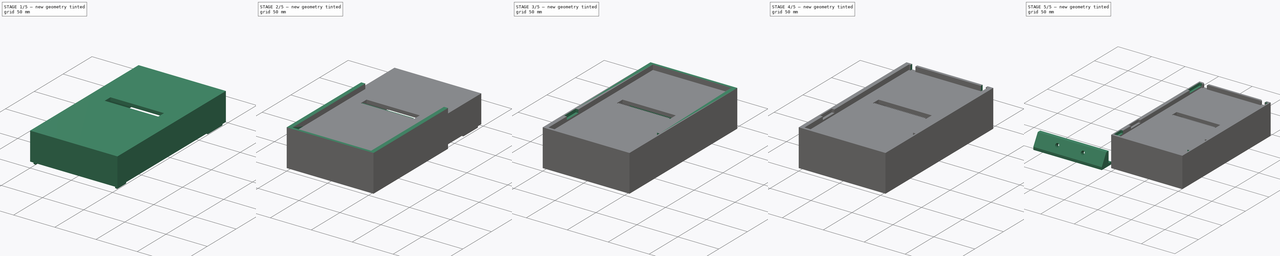
[diagram: build sequence overview — one tinted view per stage of 5, left to right]
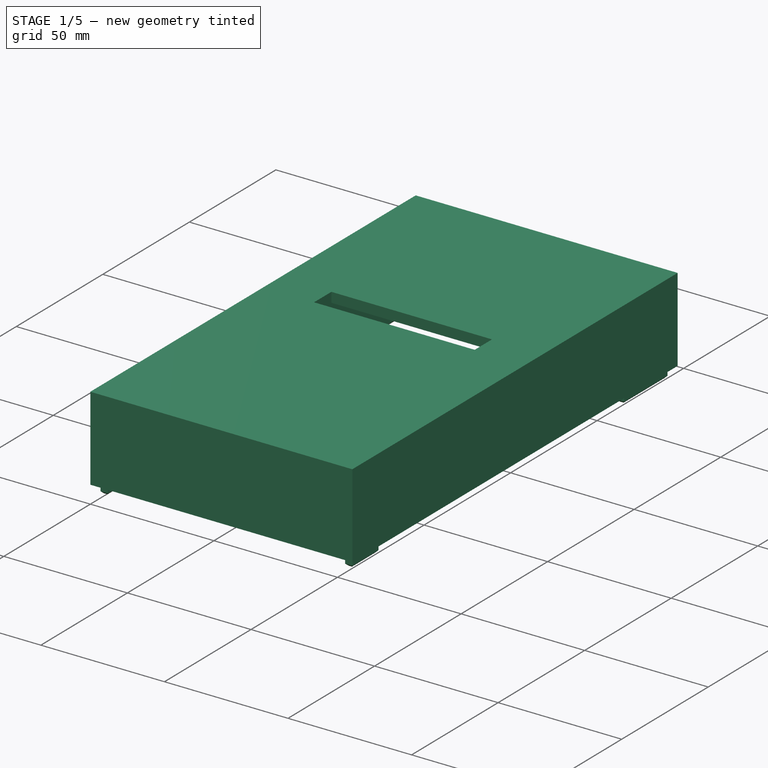
[diagram: stage 1 of 5 — iso view after this stage's code; geometry added in this stage tinted green]
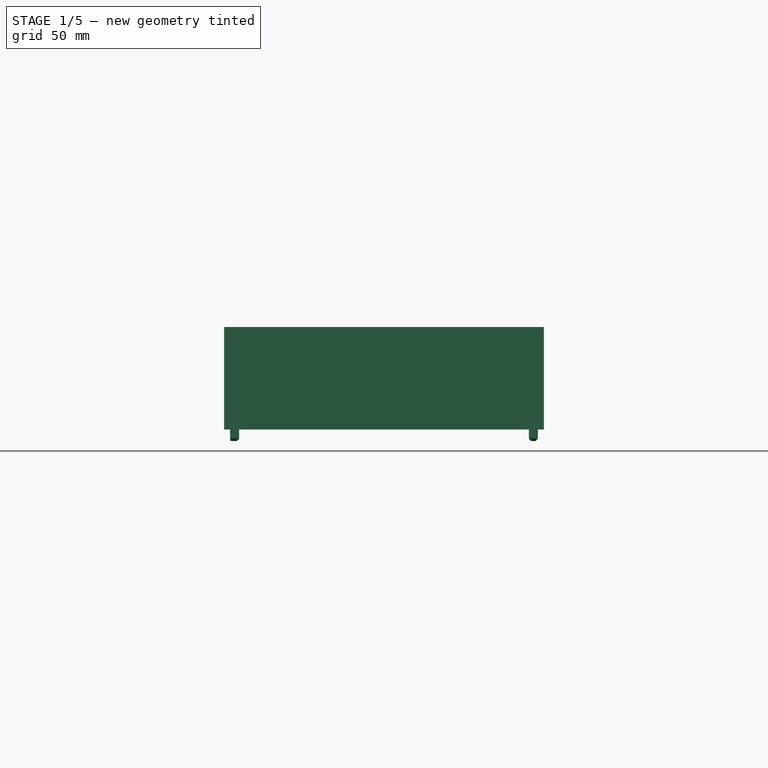
[diagram: stage 1 of 5 — front view after this stage's code; geometry added in this stage tinted green]
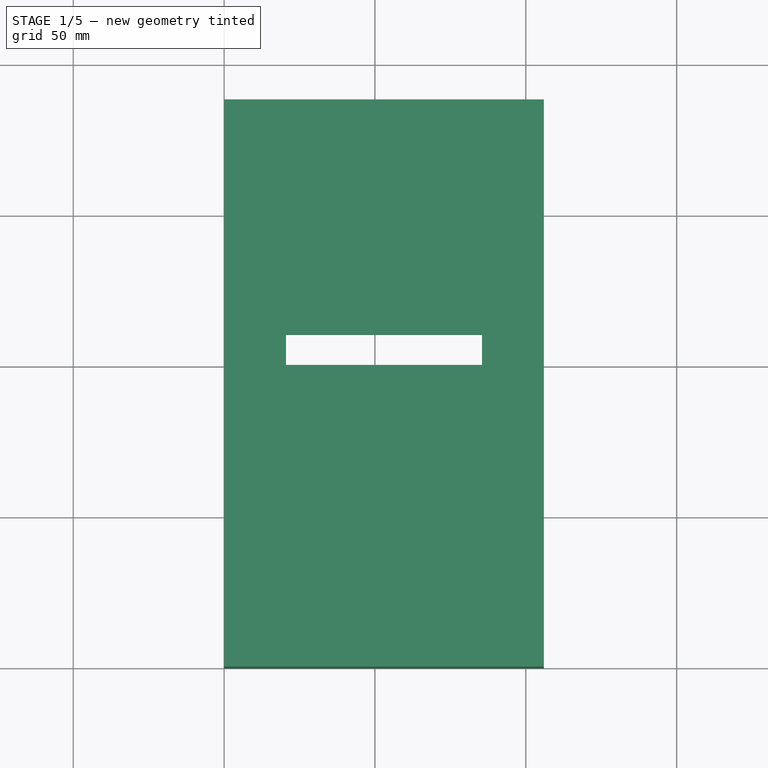
[diagram: stage 1 of 5 — top view after this stage's code; geometry added in this stage tinted green]
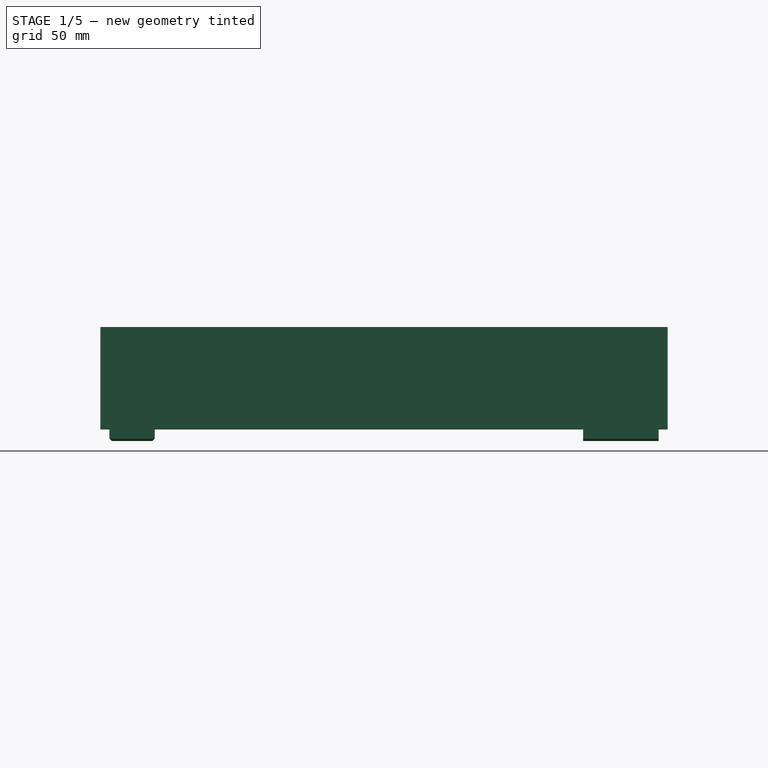
[diagram: stage 1 of 5 — right view after this stage's code; geometry added in this stage tinted green]
FCSTD DOCUMENT  (FreeCAD 1.0R39285 (Git))
Label: CAD-Bottom_RevB2
License: All rights reserved
LicenseURL: https://en.wikipedia.org/wiki/All_rights_reserved
objects: Sketcher::SketchObject×20, PartDesign::Pad×13, PartDesign::Pocket×7, PartDesign::Body×3, PartDesign::Chamfer×3, PartDesign::Plane×2, PartDesign::Mirrored×2, PartDesign::Point×1, PartDesign::LinearPattern×1
note: 121 computed .brp shape members not serialized (recipe doc carries the construction recipe); baked Part::Feature solids carry a one-line shape summary decoded from their .brp

FEATURE [PartDesign::Body] Body
  AllowCompound = false
  Group = -> [Sketch,Pad,Sketch001,Pad001,Sketch002,Pad002,Sketch005,Pocket,Sketch008,Pad005,Sketch009,Pad006,Sketch010,Pad007,Sketch011,Pocket003,DatumPoint,DatumPlane,Sketch012,Pad008,Sketch013,Pad009,DatumPlane001,Mirrored,Sketch014,Pocket004,Mirrored001,Chamfer,Sketch015,Pocket005]
  Origin = -> Origin
  Tip = -> Pocket005
FEATURE [Sketcher::SketchObject] Sketch016
  ArcFitTolerance = 1e-06
  AttachmentSupport = -> [XY_Plane003]
  FullyConstrained = true
  MakeInternals = false
  MapMode = 5
  sketch-geometry (14):
    g0: LineSegment StartX=0 StartY=0 StartZ=0 EndX=106 EndY=0 EndZ=0
    g1: LineSegment StartX=106 StartY=0 StartZ=0 EndX=106 EndY=188 EndZ=0
    g2: LineSegment StartX=106 StartY=188 StartZ=0 EndX=0 EndY=188 EndZ=0
    g3: LineSegment StartX=0 StartY=188 StartZ=0 EndX=0 EndY=0 EndZ=0
    g4: LineSegment StartX=101 StartY=185 StartZ=0 EndX=5 EndY=185 EndZ=0
    g5: LineSegment StartX=5 StartY=185 StartZ=0 EndX=5 EndY=3 EndZ=0
    g6: LineSegment StartX=5 StartY=3 StartZ=0 EndX=101 EndY=3 EndZ=0
    g7: LineSegment StartX=101 StartY=3 StartZ=0 EndX=101 EndY=185 EndZ=0
    g8: GeomPoint X=53 Y=3 Z=0
    g9: GeomPoint X=53 Y=0 Z=0
    g10: GeomPoint X=106 Y=94 Z=0
    g11: GeomPoint X=101 Y=94 Z=0
    g12: LineSegment [constr] StartX=106 StartY=94 StartZ=0 EndX=101 EndY=94 EndZ=0
    g13: LineSegment [constr] StartX=53 StartY=3 StartZ=0 EndX=53 EndY=0 EndZ=0
  constraints (31):
    c: Coincident(g0,g1)
    c: Coincident(g1,g2)
    c: Coincident(g2,g3)
    c: Coincident(g3,g0)
    c: Horizontal(g0)
    c: Horizontal(g2)
    c: Vertical(g1)
    c: Vertical(g3)
    c: Coincident(g0,g-1)
    c: DistanceX(g2,g2) = 106
    c: DistanceY(g3,g3) = 188
    c: Coincident(g4,g5)
    c: Coincident(g5,g6)
    c: Coincident(g6,g7)
    c: Coincident(g7,g4)
    c: Horizontal(g4)
    c: Horizontal(g6)
    c: Vertical(g5)
    c: Vertical(g7)
    c: Symmetric(g6,g6,g8)
    c: Symmetric(g0,g0,g9)
    c: Symmetric(g1,g1,g10)
    c: Symmetric(g7,g7,g11)
    c: Coincident(g12,g10)
    c: Coincident(g12,g11)
    c: Horizontal(g12)
    c: Coincident(g13,g8)
    c: Vertical(g13)
    c: Coincident(g9,g13)
    c: DistanceX(g4,g1) = 5
    c: DistanceY(g4,g1) = 3
FEATURE [PartDesign::Pad] Pad010
  Direction = (0,0,1)
  Length = 30
  Length2 = 10
  Profile = -> Sketch016
  ReferenceAxis = -> Sketch016 [N_Axis]
  Refine = true
  Suppressed = false
  Type = 0
FEATURE [Sketcher::SketchObject] Sketch017
  ArcFitTolerance = 1e-06
  AttachmentSupport = -> [Pad010]
  ExternalGeometry = -> [Pad010]
  FullyConstrained = true
  MakeInternals = false
  MapMode = 5
  Placement = pos=(0,0,0) rot=(1,0,0;3.14159rad)
  sketch-geometry (18):
    g0: LineSegment StartX=5 StartY=-3 StartZ=0 EndX=2 EndY=-3 EndZ=0
    g1: LineSegment StartX=2 StartY=-3 StartZ=0 EndX=2 EndY=-18 EndZ=0
    g2: LineSegment StartX=2 StartY=-18 StartZ=0 EndX=5 EndY=-18 EndZ=0
    g3: LineSegment StartX=5 StartY=-18 StartZ=0 EndX=5 EndY=-3 EndZ=0
    g4: LineSegment StartX=5 StartY=-185 StartZ=0 EndX=5 EndY=-160 EndZ=0
    g5: LineSegment StartX=5 StartY=-160 StartZ=0 EndX=2 EndY=-160 EndZ=0
    g6: LineSegment StartX=2 StartY=-160 StartZ=0 EndX=2 EndY=-185 EndZ=0
    g7: LineSegment StartX=2 StartY=-185 StartZ=0 EndX=5 EndY=-185 EndZ=0
    g8: LineSegment StartX=101 StartY=-185 StartZ=0 EndX=104 EndY=-185 EndZ=0
    g9: LineSegment StartX=104 StartY=-185 StartZ=0 EndX=104 EndY=-160 EndZ=0
    g10: LineSegment StartX=104 StartY=-160 StartZ=0 EndX=101 EndY=-160 EndZ=0
    g11: LineSegment StartX=101 StartY=-160 StartZ=0 EndX=101 EndY=-185 EndZ=0
    g12: LineSegment StartX=101 StartY=-3 StartZ=0 EndX=101 EndY=-18 EndZ=0
    g13: LineSegment StartX=101 StartY=-18 StartZ=0 EndX=104 EndY=-18 EndZ=0
    g14: LineSegment StartX=104 StartY=-18 StartZ=0 EndX=104 EndY=-3 EndZ=0
    g15: LineSegment StartX=104 StartY=-3 StartZ=0 EndX=101 EndY=-3 EndZ=0
    g16: LineSegment [constr] StartX=101 StartY=-18 StartZ=0 EndX=5 EndY=-18 EndZ=0
    g17: LineSegment [constr] StartX=5 StartY=-160 StartZ=0 EndX=101 EndY=-160 EndZ=0
  constraints (48):
    c: Coincident(g0,g1)
    c: Coincident(g1,g2)
    c: Coincident(g2,g3)
    c: Coincident(g3,g0)
    c: Horizontal(g0)
    c: Horizontal(g2)
    c: Vertical(g1)
    c: Vertical(g3)
    c: Coincident(g0,g-3)
    c: DistanceY(g3,g3) = 15
    c: DistanceX(g2,g2) = 3
    c: Coincident(g4,g5)
    c: Coincident(g5,g6)
    c: Coincident(g6,g7)
    c: Coincident(g7,g4)
    c: Vertical(g4)
    c: Vertical(g6)
    c: Horizontal(g5)
    c: Horizontal(g7)
    c: Coincident(g4,g-3)
    c: Coincident(g8,g9)
    c: Coincident(g9,g10)
    c: Coincident(g10,g11)
    c: Coincident(g11,g8)
    c: Horizontal(g8)
    c: Horizontal(g10)
    c: Vertical(g9)
    c: Vertical(g11)
    c: Coincident(g8,g-4)
    c: Coincident(g12,g13)
    c: Coincident(g13,g14)
    c: Coincident(g14,g15)
    c: Coincident(g15,g12)
    c: Vertical(g12)
    c: Vertical(g14)
    c: Horizontal(g13)
    c: Horizontal(g15)
    c: Coincident(g12,g-4)
    c: Coincident(g16,g12)
    c: Coincident(g16,g2)
    c: Horizontal(g16)
    c: Equal(g15,g0)
    c: Equal(g10,g5)
    c: Coincident(g17,g4)
    c: Coincident(g17,g10)
    c: Horizontal(g17)
    c: Distance(g5,g5) = 3
    c: DistanceY(g6,g6) = 25
FEATURE [PartDesign::Pad] Pad011
  BaseFeature = -> Pad010
  Direction = (0,0,-1)
  Length = 3.8
  Length2 = 10
  Profile = -> Sketch017
  ReferenceAxis = -> Sketch017 [N_Axis]
  Refine = true
  Suppressed = false
  Type = 0
FEATURE [Sketcher::SketchObject] Sketch018
  ArcFitTolerance = 1e-06
  AttachmentSupport = -> [Pad011]
  ExternalGeometry = -> [Pad011]
  FullyConstrained = true
  MakeInternals = false
  MapMode = 5
  Placement = pos=(0,0,0) rot=(1,0,0;3.14159rad)
  sketch-geometry (10):
    g0: LineSegment StartX=5 StartY=-34.5 StartZ=0 EndX=1.8 EndY=-34.5 EndZ=0
    g1: LineSegment StartX=1.8 StartY=-34.5 StartZ=0 EndX=1.8 EndY=-55.5 EndZ=0
    g2: LineSegment StartX=1.8 StartY=-55.5 StartZ=0 EndX=5 EndY=-55.5 EndZ=0
    g3: LineSegment StartX=5 StartY=-55.5 StartZ=0 EndX=5 EndY=-34.5 EndZ=0
    g4: LineSegment StartX=101 StartY=-34.5 StartZ=0 EndX=101 EndY=-55.5 EndZ=0
    g5: LineSegment StartX=101 StartY=-55.5 StartZ=0 EndX=104.2 EndY=-55.5 EndZ=0
    g6: LineSegment StartX=104.2 StartY=-55.5 StartZ=0 EndX=104.2 EndY=-34.5 EndZ=0
    g7: LineSegment StartX=104.2 StartY=-34.5 StartZ=0 EndX=101 EndY=-34.5 EndZ=0
    g8: LineSegment [constr] StartX=5 StartY=-34.5 StartZ=0 EndX=101 EndY=-34.5 EndZ=0
    g9: LineSegment [constr] StartX=101 StartY=-55.5 StartZ=0 EndX=5 EndY=-55.5 EndZ=0
  constraints (28):
    c: Coincident(g0,g1)
    c: Coincident(g1,g2)
    c: Coincident(g2,g3)
    c: Coincident(g3,g0)
    c: Horizontal(g0)
    c: Horizontal(g2)
    c: Vertical(g1)
    c: Vertical(g3)
    c: PointOnObject(g0,g-3)
    c: Coincident(g4,g5)
    c: Coincident(g5,g6)
    c: Coincident(g6,g7)
    c: Coincident(g7,g4)
    c: Vertical(g4)
    c: Vertical(g6)
    c: Horizontal(g5)
    c: Horizontal(g7)
    c: PointOnObject(g4,g-4)
    c: Equal(g7,g0)
    c: DistanceY(g0,g-5) = 31.5
    c: DistanceY(g1,g1) = 21
    c: DistanceX(g0,g0) = 3.2
    c: Coincident(g8,g0)
    c: Coincident(g8,g4)
    c: Coincident(g9,g4)
    c: Coincident(g9,g2)
    c: Horizontal(g9)
    c: Horizontal(g8)
FEATURE [PartDesign::Pocket] Pocket006
  BaseFeature = -> Pad011
  Direction = (0,0,1)
  Length = 16.5
  Length2 = 5
  Profile = -> Sketch018
  ReferenceAxis = -> Sketch018 [N_Axis]
  Refine = true
  Suppressed = false
  Type = 0
FEATURE [Sketcher::SketchObject] Sketch019
  ArcFitTolerance = 1e-06
  AttachmentSupport = -> [Pocket006]
  ExternalGeometry = -> [Pocket006]
  FullyConstrained = true
  MakeInternals = false
  MapMode = 5
  Placement = pos=(0,0,30) rot=(0,0,1;0rad)
  sketch-geometry (10):
    g0: LineSegment StartX=106 StartY=188 StartZ=0 EndX=0 EndY=188 EndZ=0
    g1: LineSegment StartX=0 StartY=188 StartZ=0 EndX=0 EndY=0 EndZ=0
    g2: LineSegment StartX=0 StartY=0 StartZ=0 EndX=106 EndY=0 EndZ=0
    g3: LineSegment StartX=106 StartY=0 StartZ=0 EndX=106 EndY=188 EndZ=0
    g4: LineSegment StartX=85.5 StartY=110 StartZ=0 EndX=20.5 EndY=110 EndZ=0
    g5: LineSegment StartX=20.5 StartY=110 StartZ=0 EndX=20.5 EndY=100 EndZ=0
    g6: LineSegment StartX=20.5 StartY=100 StartZ=0 EndX=85.5 EndY=100 EndZ=0
    g7: LineSegment StartX=85.5 StartY=100 StartZ=0 EndX=85.5 EndY=110 EndZ=0
    g8: LineSegment [constr] StartX=20.5 StartY=100 StartZ=0 EndX=0 EndY=0 EndZ=0
    g9: LineSegment [constr] StartX=85.5 StartY=100 StartZ=0 EndX=106 EndY=0 EndZ=0
  constraints (26):
    c: Coincident(g0,g1)
    c: Coincident(g1,g2)
    c: Coincident(g2,g3)
    c: Coincident(g3,g0)
    c: Horizontal(g0)
    c: Horizontal(g2)
    c: Vertical(g1)
    c: Vertical(g3)
    c: Coincident(g0,g-3)
    c: Coincident(g1,g-1)
    c: Coincident(g4,g5)
    c: Coincident(g5,g6)
    c: Coincident(g6,g7)
    c: Coincident(g7,g4)
    c: Horizontal(g4)
    c: Horizontal(g6)
    c: Vertical(g5)
    c: Vertical(g7)
    c: DistanceX(g4,g4) = 65
    c: Coincident(g8,g5)
    c: Coincident(g8,g1)
    c: Coincident(g9,g6)
    c: Coincident(g9,g2)
    c: Equal(g9,g8)
    c: DistanceY(g9,g9) = 100
    c: DistanceY(g7,g7) = 10
FEATURE [PartDesign::Pad] Pad012
  BaseFeature = -> Pocket006
  Direction = (0,0,1)
  Length = 4
  Length2 = 10
  Profile = -> Sketch019
  ReferenceAxis = -> Sketch019 [N_Axis]
  Refine = true
  Suppressed = false
  Type = 0
FEATURE [PartDesign::Chamfer] Chamfer001
  Angle = 45
  Base = -> Pad012 [Face28,Face30,Edge39,Face27]
  BaseFeature = -> Pad012
  ChamferType = 0
  FlipDirection = false
  Refine = true
  Size = 0.8
  Size2 = 1
  SupportTransform = false
  Suppressed = false
  UseAllEdges = false
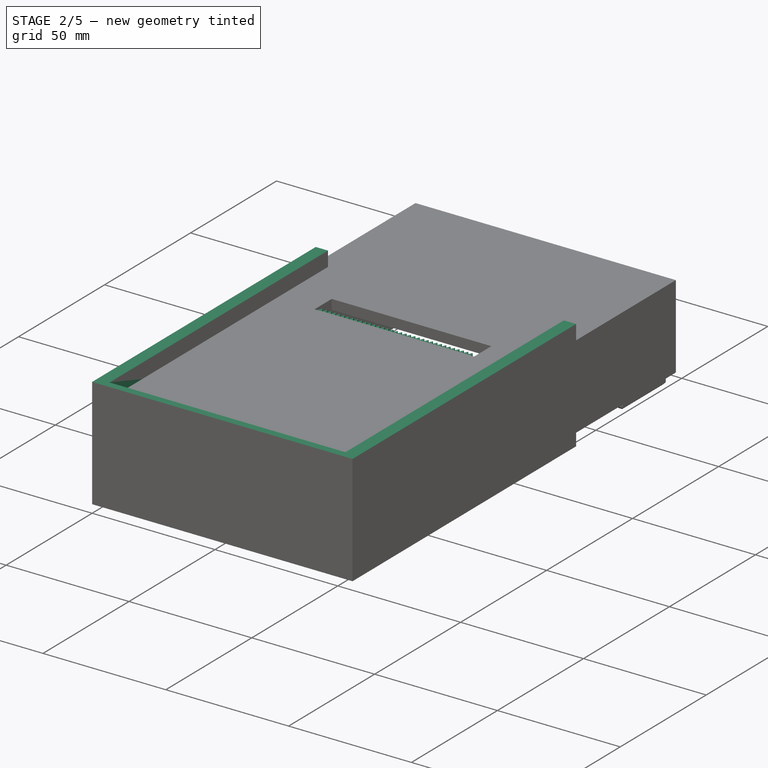
[diagram: stage 2 of 5 — iso view after this stage's code; geometry added in this stage tinted green]
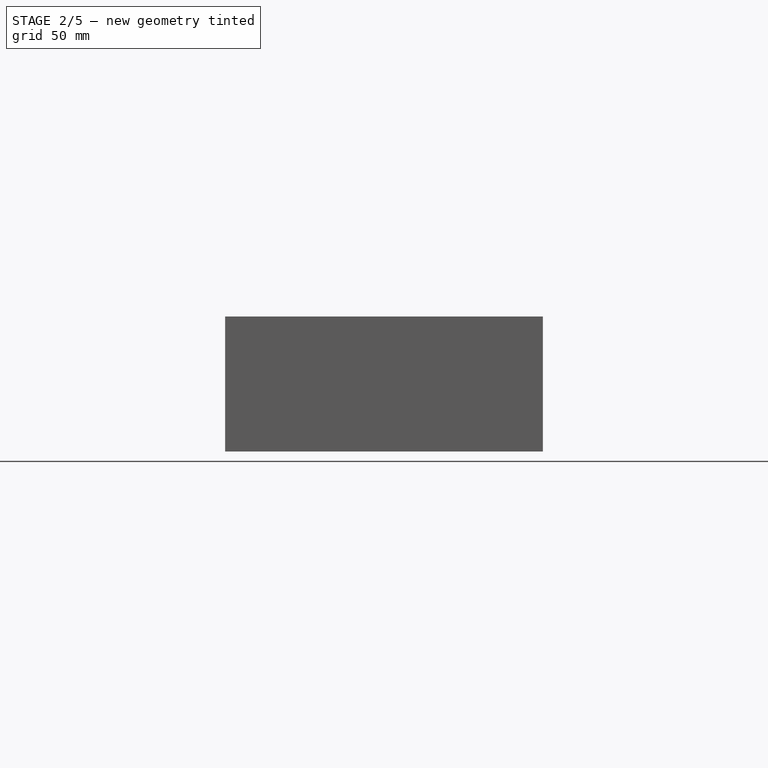
[diagram: stage 2 of 5 — front view after this stage's code; geometry added in this stage tinted green]
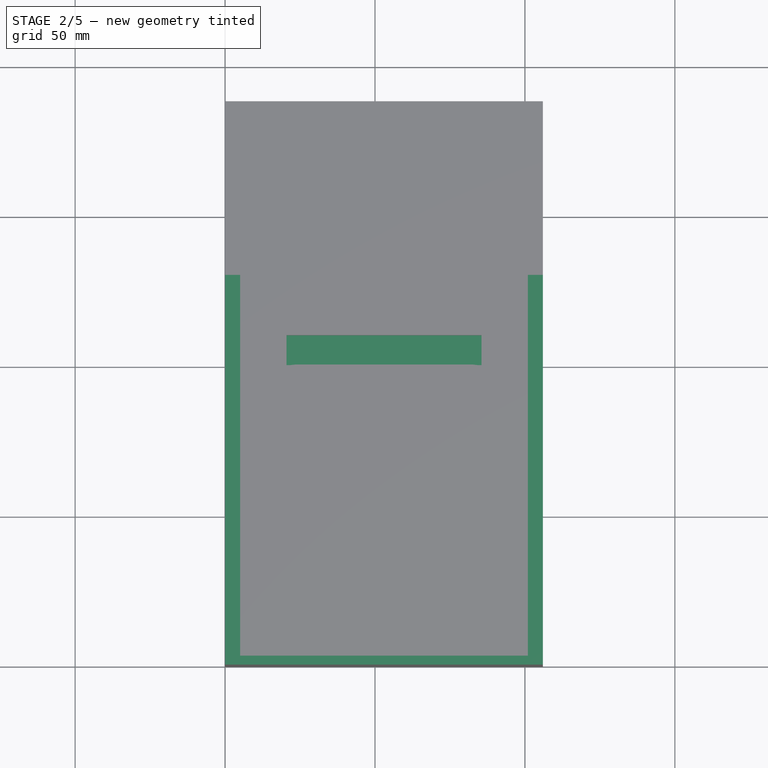
[diagram: stage 2 of 5 — top view after this stage's code; geometry added in this stage tinted green]
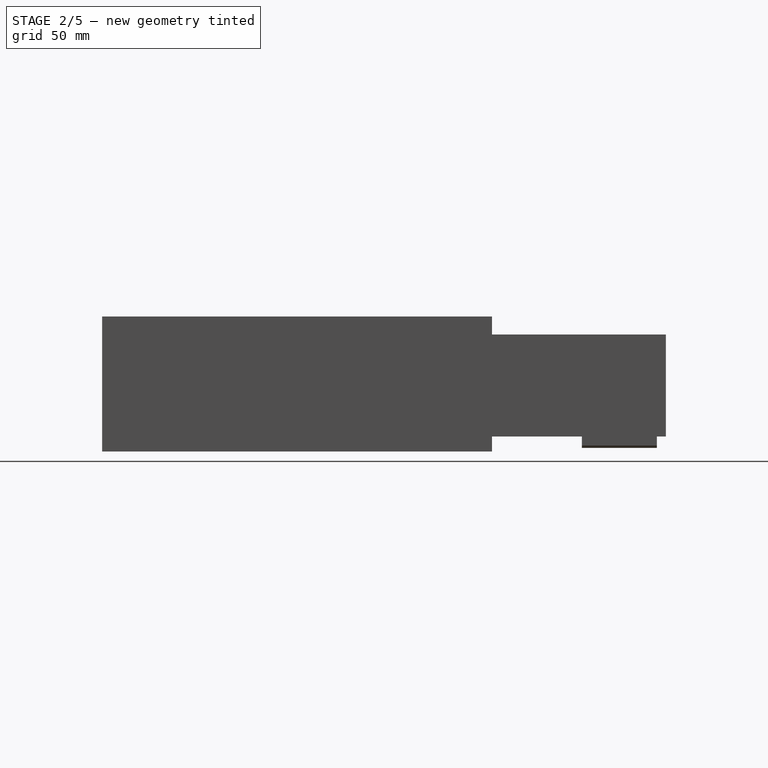
[diagram: stage 2 of 5 — right view after this stage's code; geometry added in this stage tinted green]
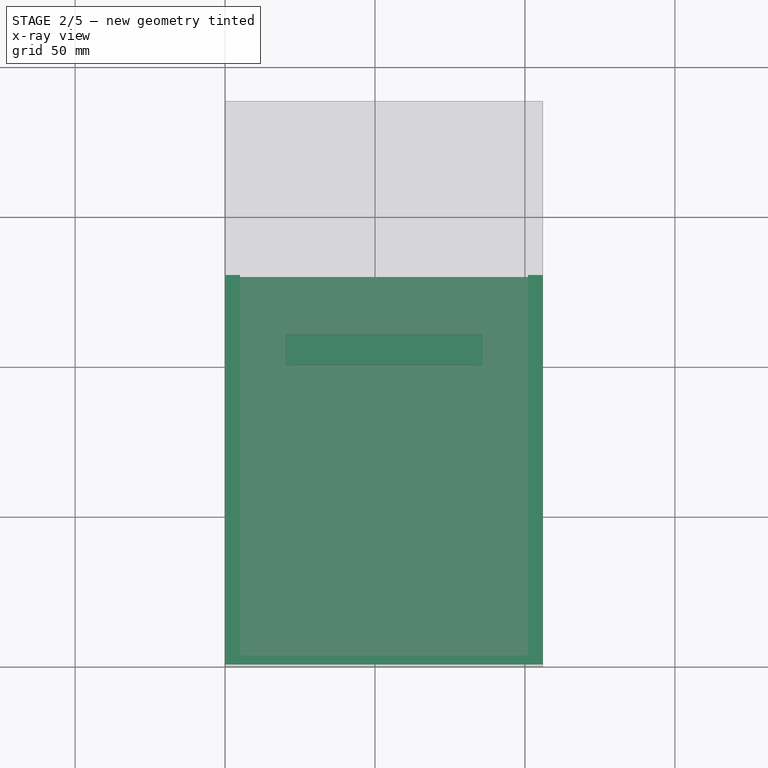
[diagram: stage 2 of 5 — x-ray composite at the top view; earlier geometry ghosted, this stage's added geometry solid]
FEATURE [Sketcher::SketchObject] Sketch
  ArcFitTolerance = 1e-06
  AttachmentSupport = -> [XY_Plane]
  FullyConstrained = true
  MakeInternals = false
  MapMode = 5
  expr: Constraints[24] = 15 mm + 3 mm
  sketch-geometry (21):
    g0: LineSegment [constr] StartX=8 StartY=18 StartZ=0 EndX=98 EndY=18 EndZ=0
    g1: LineSegment [constr] StartX=98 StartY=18 StartZ=0 EndX=98 EndY=90 EndZ=0
    g2: LineSegment [constr] StartX=98 StartY=90 StartZ=0 EndX=8 EndY=90 EndZ=0
    g3: LineSegment [constr] StartX=8 StartY=90 StartZ=0 EndX=8 EndY=18 EndZ=0
    g4: LineSegment StartX=0 StartY=0 StartZ=0 EndX=106 EndY=0 EndZ=0
    g5: LineSegment StartX=106 StartY=0 StartZ=0 EndX=106 EndY=130 EndZ=0
    g6: LineSegment StartX=106 StartY=130 StartZ=0 EndX=0 EndY=130 EndZ=0
    g7: LineSegment StartX=0 StartY=130 StartZ=0 EndX=0 EndY=0 EndZ=0
    g8: LineSegment [constr] StartX=8 StartY=18 StartZ=0 EndX=0 EndY=0 EndZ=0
    g9: LineSegment [constr] StartX=98 StartY=18 StartZ=0 EndX=106 EndY=0 EndZ=0
    g10: Circle [constr] CenterX=23 CenterY=85.8 CenterZ=0 NormalX=0 NormalY=0 NormalZ=1 AngleXU=0 Radius=1.6
    g11: LineSegment [constr] StartX=8 StartY=90 StartZ=0 EndX=23 EndY=85.8 EndZ=0
    g12: LineSegment [constr] StartX=98 StartY=18 StartZ=0 EndX=94.6 EndY=22.2 EndZ=0
    g13: Circle [constr] CenterX=83 CenterY=85.8 CenterZ=0 NormalX=0 NormalY=0 NormalZ=1 AngleXU=0 Radius=1.6
    g14: Circle [constr] CenterX=94.6 CenterY=22.2 CenterZ=0 NormalX=0 NormalY=0 NormalZ=1 AngleXU=0 Radius=1.6
    g15: Circle [constr] CenterX=12.5 CenterY=22.2 CenterZ=0 NormalX=0 NormalY=0 NormalZ=1 AngleXU=0 Radius=1.6
    g16: LineSegment [constr] StartX=53 StartY=90 StartZ=0 EndX=53 EndY=18 EndZ=0
    g17: LineSegment [constr] StartX=83 StartY=85.8 StartZ=0 EndX=23 EndY=85.8 EndZ=0
    g18: LineSegment [constr] StartX=12.5 StartY=22.2 StartZ=0 EndX=12.5 EndY=18 EndZ=0
    g19: LineSegment [constr] StartX=23 StartY=85.8 StartZ=0 EndX=23 EndY=90 EndZ=0
    g20: LineSegment [constr] StartX=12.5 StartY=22.2 StartZ=0 EndX=94.6 EndY=22.2 EndZ=0
  constraints (55):
    c: Coincident(g0,g1)
    c: Coincident(g1,g2)
    c: Coincident(g2,g3)
    c: Coincident(g3,g0)
    c: Horizontal(g0)
    c: Horizontal(g2)
    c: Vertical(g1)
    c: Vertical(g3)
    c: DistanceX(g2,g2) = 90
    c: DistanceY(g3,g3) = 72
    c: Coincident(g4,g5)
    c: Coincident(g5,g6)
    c: Coincident(g6,g7)
    c: Coincident(g7,g4)
    c: Horizontal(g4)
    c: Horizontal(g6)
    c: Vertical(g5)
    c: Vertical(g7)
    c: Coincident(g4,g-1)
    c: Coincident(g8,g0)
    c: Coincident(g8,g4)
    c: Coincident(g9,g0)
    c: Coincident(g9,g4)
    c: Equal(g9,g8)
    c: DistanceY(g8,g8) = 18
    c: DistanceX(g8,g8) = 8
    c: DistanceY(g7,g7) = 130
    c: Diameter(g10) = 3.2
    c: Coincident(g11,g2)
    c: Coincident(g11,g10)
    c: Coincident(g12,g0)
    c: Coincident(g14,g12)
    c: Equal(g15,g13)
    c: Equal(g13,g14)
    c: Equal(g14,g10)
    c: Symmetric(g2,g2,g16)
    c: Symmetric(g0,g0,g16)
    c: Distance(g10,g16) = 30
    c: DistanceY(g15,g10) = 63.6
    c: Coincident(g17,g10)
    c: Horizontal(g17)
    c: Distance(g13,g16) = 30
    c: Coincident(g17,g13)
    c: PointOnObject(g18,g0)
    c: Vertical(g18)
    c: Coincident(g19,g10)
    c: PointOnObject(g19,g2)
    c: Vertical(g19)
    c: Equal(g19,g18)
    c: Distance(g15,g16) = 40.5
    c: Distance(g12,g16) = 41.6
    c: Coincident(g18,g15)
    c: Coincident(g20,g15)
    c: Coincident(g20,g12)
    c: Horizontal(g20)
FEATURE [PartDesign::Pad] Pad
  Direction = (0,0,1)
  Length = 5
  Length2 = 10
  Profile = -> Sketch
  ReferenceAxis = -> Sketch [N_Axis]
  Refine = true
  Reversed = true
  Suppressed = false
  Type = 0
FEATURE [Sketcher::SketchObject] Sketch001
  ArcFitTolerance = 1e-06
  AttachmentSupport = -> [Pad]
  ExternalGeometry = -> [Pad]
  FullyConstrained = true
  MakeInternals = false
  MapMode = 5
  sketch-geometry (14):
    g0: LineSegment StartX=5 StartY=125 StartZ=0 EndX=5 EndY=3 EndZ=0
    g1: LineSegment StartX=5 StartY=3 StartZ=0 EndX=101 EndY=3 EndZ=0
    g2: LineSegment StartX=101 StartY=3 StartZ=0 EndX=101 EndY=125 EndZ=0
    g3: LineSegment [constr] StartX=101 StartY=125 StartZ=0 EndX=5 EndY=125 EndZ=0
    g4: LineSegment [constr] StartX=5 StartY=3 StartZ=0 EndX=0 EndY=0 EndZ=0
    g5: LineSegment [constr] StartX=101 StartY=3 StartZ=0 EndX=106 EndY=0 EndZ=0
    g6: LineSegment StartX=0 StartY=0 StartZ=0 EndX=106 EndY=0 EndZ=0
    g7: LineSegment StartX=106 StartY=0 StartZ=0 EndX=106 EndY=130 EndZ=0
    g8: LineSegment [constr] StartX=106 StartY=130 StartZ=0 EndX=0 EndY=130 EndZ=0
    g9: LineSegment StartX=0 StartY=130 StartZ=0 EndX=0 EndY=0 EndZ=0
    g10: LineSegment StartX=5 StartY=125 StartZ=0 EndX=5 EndY=130 EndZ=0
    g11: LineSegment StartX=101 StartY=125 StartZ=0 EndX=101 EndY=130 EndZ=0
    g12: LineSegment StartX=5 StartY=130 StartZ=0 EndX=0 EndY=130 EndZ=0
    g13: LineSegment StartX=101 StartY=130 StartZ=0 EndX=106 EndY=130 EndZ=0
  constraints (36):
    c: Coincident(g0,g1)
    c: Coincident(g1,g2)
    c: Coincident(g2,g3)
    c: Coincident(g3,g0)
    c: Vertical(g0)
    c: Vertical(g2)
    c: Horizontal(g1)
    c: Horizontal(g3)
    c: Coincident(g4,g0)
    c: Coincident(g4,g-1)
    c: Coincident(g5,g1)
    c: Coincident(g5,g-4)
    c: DistanceY(g4,g4) = 3
    c: DistanceX(g4,g4) = 5
    c: Equal(g5,g4)
    c: Coincident(g6,g7)
    c: Coincident(g7,g8)
    c: Coincident(g8,g9)
    c: Coincident(g9,g6)
    c: Horizontal(g6)
    c: Horizontal(g8)
    c: Vertical(g7)
    c: Vertical(g9)
    c: Coincident(g6,g4)
    c: Coincident(g7,g-4)
    c: DistanceY(g2,g7) = 5
    c: Coincident(g10,g0)
    c: PointOnObject(g10,g8)
    c: Vertical(g10)
    c: Coincident(g11,g2)
    c: PointOnObject(g11,g8)
    c: Vertical(g11)
    c: Coincident(g12,g10)
    c: Coincident(g12,g8)
    c: Coincident(g13,g11)
    c: Coincident(g13,g7)
FEATURE [PartDesign::Pad] Pad001
  BaseFeature = -> Pad
  Direction = (0,0,1)
  Length = 40
  Length2 = 10
  Profile = -> Sketch001
  ReferenceAxis = -> Sketch001 [N_Axis]
  Refine = true
  Suppressed = false
  Type = 0
FEATURE [PartDesign::Chamfer] Chamfer002
  Angle = 45
  Base = -> Chamfer001 [Edge41,Edge39,Edge30,Edge28]
  BaseFeature = -> Chamfer001
  ChamferType = 0
  FlipDirection = false
  Refine = true
  Size = 0.8
  Size2 = 1
  SupportTransform = false
  Suppressed = false
  UseAllEdges = false
FEATURE [Sketcher::SketchObject] Sketch020
  ArcFitTolerance = 1e-06
  AttachmentSupport = -> [Chamfer002]
  ExternalGeometry = -> [Chamfer002]
  FullyConstrained = true
  MakeInternals = false
  MapMode = 5
  Placement = pos=(0,0,30) rot=(1,0,0;3.14159rad)
  sketch-geometry (3):
    g0: LineSegment StartX=84.5 StartY=-100 StartZ=0 EndX=83.5 EndY=-102 EndZ=0
    g1: LineSegment StartX=83.5 StartY=-102 StartZ=0 EndX=82.5 EndY=-100 EndZ=0
    g2: LineSegment StartX=82.5 StartY=-100 StartZ=0 EndX=84.5 EndY=-100 EndZ=0
  constraints (10):
    c: Coincident(g1,g0)
    c: Coincident(g2,g1)
    c: Coincident(g2,g0)
    c: Horizontal(g2)
    c: DistanceX(g-3,g-3) = 65
    c: DistanceX(g2,g2) = 2
    c: Equal(g0,g1)
    c: DistanceY(g0,g0) = 2
    c: PointOnObject(g0,g-3)
    c: DistanceX(g0,g-3) = 1
FEATURE [PartDesign::Pad] Pad013
  BaseFeature = -> Chamfer002
  Direction = (0,0,-1)
  Length = 10
  Length2 = 10
  Profile = -> Sketch020
  ReferenceAxis = -> Sketch020 [N_Axis]
  Refine = true
  Reversed = true
  Suppressed = false
  Type = 3
  UpToFace = -> Chamfer002 [Face54]
FEATURE [PartDesign::LinearPattern] LinearPattern
  BaseFeature = -> Pad013
  Direction = -> Pad013 [Edge134]
  Length = 61
  Mode = 0
  Occurrences = 35
  Offset = 1.79412
  Originals = -> [Pad013]
  Refine = true
  Reversed = true
  Suppressed = false
  TransformMode = 0
FEATURE [PartDesign::Body] Body003
  AllowCompound = false
  Group = -> [Sketch016,Pad010,Sketch017,Pad011,Sketch018,Pocket006,Sketch019,Pad012,Chamfer001,Chamfer002,Sketch020,Pad013,LinearPattern]
  Origin = -> Origin003
  Placement = pos=(0,0,40) rot=(0,0,1;0rad)
  Tip = -> LinearPattern
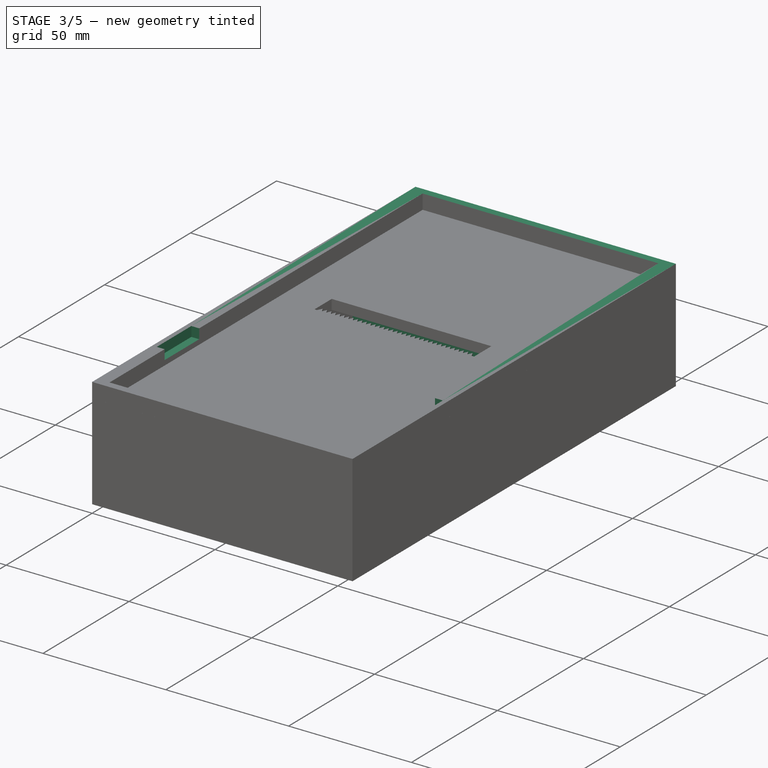
[diagram: stage 3 of 5 — iso view after this stage's code; geometry added in this stage tinted green]
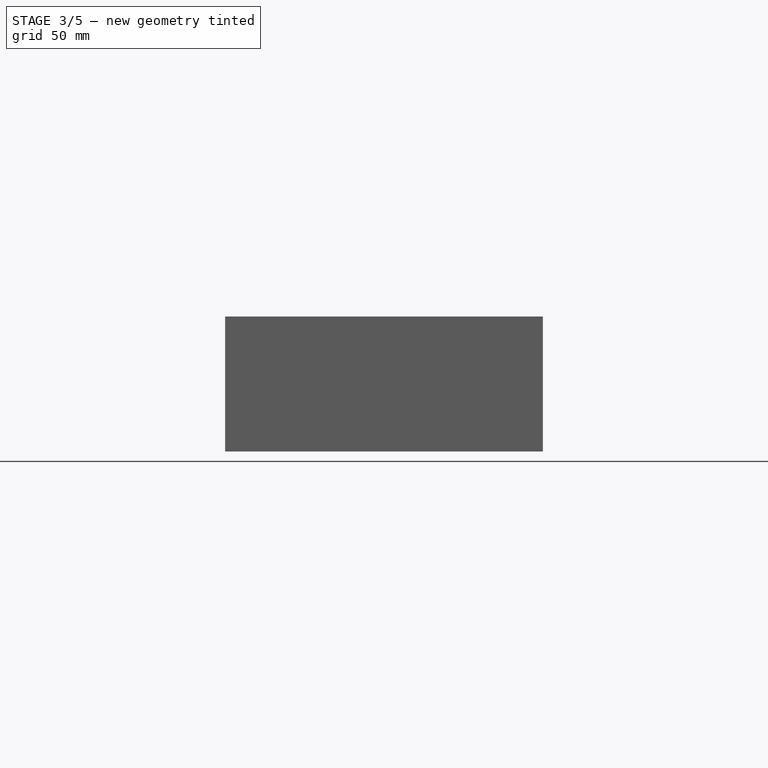
[diagram: stage 3 of 5 — front view after this stage's code; geometry added in this stage tinted green]
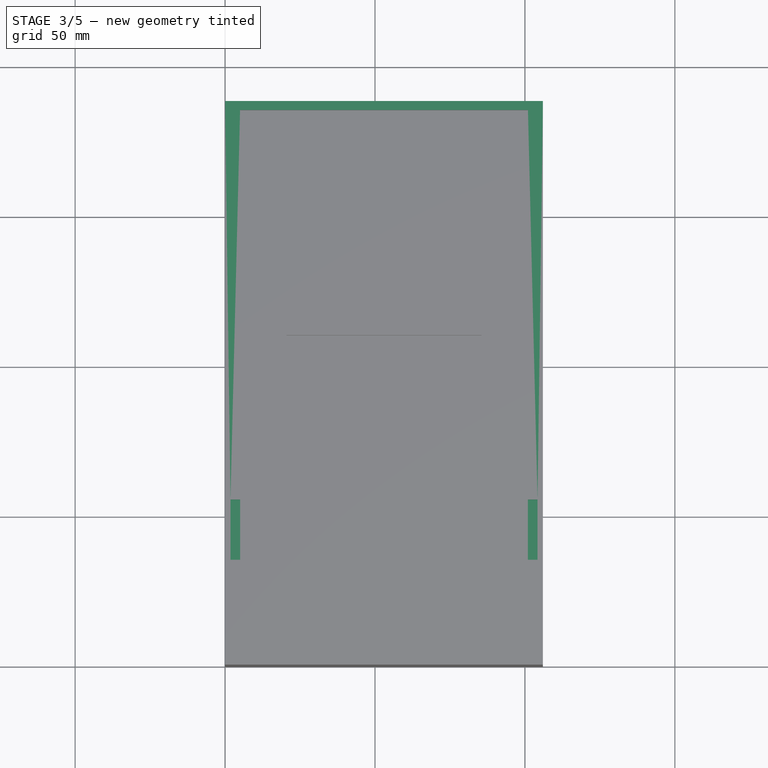
[diagram: stage 3 of 5 — top view after this stage's code; geometry added in this stage tinted green]
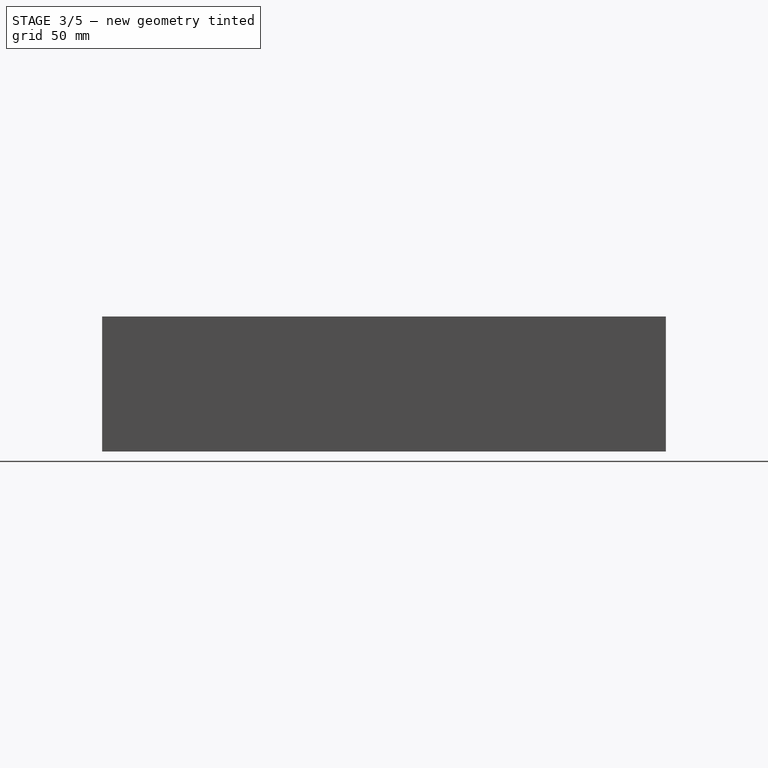
[diagram: stage 3 of 5 — right view after this stage's code; geometry added in this stage tinted green]
FEATURE [Sketcher::SketchObject] Sketch002
  ArcFitTolerance = 1e-06
  AttachmentSupport = -> [Pad001]
  FullyConstrained = true
  MakeInternals = false
  MapMode = 5
  expr: Constraints[11] = Sketch.Constraints[8]
  expr: Constraints[12] = Sketch.Constraints[9]
  expr: Constraints[27] = Sketch.Constraints[24]
  expr: Constraints[28] = Sketch.Constraints[25]
  expr: Constraints[29] = Sketch.Constraints[26]
  expr: Constraints[30] = Sketch.Constraints[27]
  expr: Constraints[40] = Sketch.Constraints[37]
  expr: Constraints[41] = Sketch.Constraints[38]
  expr: Constraints[44] = Sketch.Constraints[41]
  expr: Constraints[52] = Sketch.Constraints[49]
  expr: Constraints[53] = Sketch.Constraints[50]
  sketch-geometry (25):
    g0: Circle CenterX=83 CenterY=85.8 CenterZ=0 NormalX=0 NormalY=0 NormalZ=1 AngleXU=0 Radius=3.5
    g1: Circle CenterX=94.6 CenterY=22.2 CenterZ=0 NormalX=0 NormalY=0 NormalZ=1 AngleXU=0 Radius=3.5
    g2: Circle CenterX=12.5 CenterY=22.2 CenterZ=0 NormalX=0 NormalY=0 NormalZ=1 AngleXU=0 Radius=3.5
    g3: Circle CenterX=23 CenterY=85.8 CenterZ=0 NormalX=0 NormalY=0 NormalZ=1 AngleXU=0 Radius=3.5
    g4: LineSegment [constr] StartX=8 StartY=18 StartZ=0 EndX=98 EndY=18 EndZ=0
    g5: LineSegment [constr] StartX=98 StartY=18 StartZ=0 EndX=98 EndY=90 EndZ=0
    g6: LineSegment [constr] StartX=98 StartY=90 StartZ=0 EndX=8 EndY=90 EndZ=0
    g7: LineSegment [constr] StartX=8 StartY=90 StartZ=0 EndX=8 EndY=18 EndZ=0
    g8: LineSegment [constr] StartX=0 StartY=0 StartZ=0 EndX=106 EndY=0 EndZ=0
    g9: LineSegment [constr] StartX=106 StartY=0 StartZ=0 EndX=106 EndY=130 EndZ=0
    g10: LineSegment [constr] StartX=106 StartY=130 StartZ=0 EndX=0 EndY=130 EndZ=0
    g11: LineSegment [constr] StartX=0 StartY=130 StartZ=0 EndX=0 EndY=0 EndZ=0
    g12: LineSegment [constr] StartX=8 StartY=18 StartZ=0 EndX=0 EndY=0 EndZ=0
    g13: LineSegment [constr] StartX=98 StartY=18 StartZ=0 EndX=106 EndY=0 EndZ=0
    g14: Circle CenterX=23 CenterY=85.8 CenterZ=0 NormalX=0 NormalY=0 NormalZ=1 AngleXU=0 Radius=1.6
    g15: LineSegment [constr] StartX=8 StartY=90 StartZ=0 EndX=23 EndY=85.8 EndZ=0
    g16: LineSegment [constr] StartX=98 StartY=18 StartZ=0 EndX=94.6 EndY=22.2 EndZ=0
    g17: Circle CenterX=83 CenterY=85.8 CenterZ=0 NormalX=0 NormalY=0 NormalZ=1 AngleXU=0 Radius=1.6
    g18: Circle CenterX=94.6 CenterY=22.2 CenterZ=0 NormalX=0 NormalY=0 NormalZ=1 AngleXU=0 Radius=1.6
    g19: Circle CenterX=12.5 CenterY=22.2 CenterZ=0 NormalX=0 NormalY=0 NormalZ=1 AngleXU=0 Radius=1.6
    g20: LineSegment [constr] StartX=53 StartY=90 StartZ=0 EndX=53 EndY=18 EndZ=0
    g21: LineSegment [constr] StartX=83 StartY=85.8 StartZ=0 EndX=23 EndY=85.8 EndZ=0
    g22: LineSegment [constr] StartX=12.5 StartY=22.2 StartZ=0 EndX=12.5 EndY=18 EndZ=0
    g23: LineSegment [constr] StartX=23 StartY=85.8 StartZ=0 EndX=23 EndY=90 EndZ=0
    g24: LineSegment [constr] StartX=12.5 StartY=22.2 StartZ=0 EndX=94.6 EndY=22.2 EndZ=0
  constraints (63):
    c: Equal(g2,g0)
    c: Equal(g0,g1)
    c: Diameter(g3) = 7
    c: Coincident(g4,g5)
    c: Coincident(g5,g6)
    c: Coincident(g6,g7)
    c: Coincident(g7,g4)
    c: Horizontal(g4)
    c: Horizontal(g6)
    c: Vertical(g5)
    c: Vertical(g7)
    c: DistanceX(g6,g6) = 90
    c: DistanceY(g7,g7) = 72
    c: Coincident(g8,g9)
    c: Coincident(g9,g10)
    c: Coincident(g10,g11)
    c: Coincident(g11,g8)
    c: Horizontal(g8)
    c: Horizontal(g10)
    c: Vertical(g9)
    c: Vertical(g11)
    c: Coincident(g8,g-1)
    c: Coincident(g12,g4)
    c: Coincident(g12,g8)
    c: Coincident(g13,g4)
    c: Coincident(g13,g8)
    c: Equal(g13,g12)
    c: DistanceY(g12,g12) = 18
    c: DistanceX(g12,g12) = 8
    c: DistanceY(g11,g11) = 130
    c: Diameter(g14) = 3.2
    c: Coincident(g15,g6)
    c: Coincident(g15,g14)
    c: Coincident(g16,g4)
    c: Coincident(g18,g16)
    c: Equal(g19,g17)
    c: Equal(g17,g18)
    c: Equal(g18,g14)
    c: Symmetric(g6,g6,g20)
    c: Symmetric(g4,g4,g20)
    c: Distance(g14,g20) = 30
    c: DistanceY(g19,g14) = 63.6
    c: Coincident(g21,g14)
    c: Horizontal(g21)
    c: Distance(g17,g20) = 30
    c: Coincident(g21,g17)
    c: PointOnObject(g22,g4)
    c: Vertical(g22)
    c: Coincident(g23,g14)
    c: PointOnObject(g23,g6)
    c: Vertical(g23)
    c: Equal(g23,g22)
    c: Distance(g19,g20) = 40.5
    c: Distance(g16,g20) = 41.6
    c: Coincident(g22,g19)
    c: Coincident(g24,g19)
    c: Coincident(g24,g16)
    c: Horizontal(g24)
    c: Equal(g2,g3)
    c: Coincident(g3,g14)
    c: Coincident(g0,g17)
    c: Coincident(g1,g16)
    c: Coincident(g2,g19)
FEATURE [PartDesign::Pad] Pad002
  BaseFeature = -> Pad001
  Direction = (0,0,1)
  Length = 5
  Length2 = 10
  Profile = -> Sketch002
  ReferenceAxis = -> Sketch002 [N_Axis]
  Refine = true
  Suppressed = false
  Type = 0
FEATURE [Sketcher::SketchObject] Sketch005
  ArcFitTolerance = 1e-06
  AttachmentSupport = -> [Pad002]
  ExternalGeometry = -> [Pad002]
  FullyConstrained = true
  MakeInternals = false
  MapMode = 5
  Placement = pos=(0,0,40) rot=(0,0,1;0rad)
  sketch-geometry (10):
    g0: LineSegment StartX=5 StartY=55.1 StartZ=0 EndX=1.8 EndY=55.1 EndZ=0
    g1: LineSegment StartX=1.8 StartY=55.1 StartZ=0 EndX=1.8 EndY=35 EndZ=0
    g2: LineSegment StartX=1.8 StartY=35 StartZ=0 EndX=5 EndY=35 EndZ=0
    g3: LineSegment StartX=5 StartY=35 StartZ=0 EndX=5 EndY=55.1 EndZ=0
    g4: LineSegment StartX=101 StartY=35 StartZ=0 EndX=104.2 EndY=35 EndZ=0
    g5: LineSegment StartX=104.2 StartY=35 StartZ=0 EndX=104.2 EndY=55.1 EndZ=0
    g6: LineSegment StartX=104.2 StartY=55.1 StartZ=0 EndX=101 EndY=55.1 EndZ=0
    g7: LineSegment StartX=101 StartY=55.1 StartZ=0 EndX=101 EndY=35 EndZ=0
    g8: LineSegment [constr] StartX=5 StartY=55.1 StartZ=0 EndX=101 EndY=55.1 EndZ=0
    g9: LineSegment [constr] StartX=101 StartY=35 StartZ=0 EndX=5 EndY=35 EndZ=0
  constraints (28):
    c: Coincident(g0,g1)
    c: Coincident(g1,g2)
    c: Coincident(g2,g3)
    c: Coincident(g3,g0)
    c: Horizontal(g0)
    c: Horizontal(g2)
    c: Vertical(g1)
    c: Vertical(g3)
    c: Coincident(g4,g5)
    c: Coincident(g5,g6)
    c: Coincident(g6,g7)
    c: Coincident(g7,g4)
    c: Horizontal(g4)
    c: Horizontal(g6)
    c: Vertical(g5)
    c: Vertical(g7)
    c: PointOnObject(g6,g-6)
    c: Coincident(g8,g0)
    c: Coincident(g8,g6)
    c: Horizontal(g8)
    c: Coincident(g9,g4)
    c: Coincident(g9,g2)
    c: Horizontal(g9)
    c: DistanceY(g1,g1) = 20.1
    c: DistanceY(g-1,g1) = 35
    c: PointOnObject(g0,g-5)
    c: DistanceX(g0,g0) = 3.2
    c: Equal(g6,g0)
FEATURE [PartDesign::Pocket] Pocket
  BaseFeature = -> Pad002
  Direction = (0,0,-1)
  Length = 4
  Length2 = 5
  Profile = -> Sketch005
  ReferenceAxis = -> Sketch005 [N_Axis]
  Refine = true
  Suppressed = false
  Type = 0
FEATURE [PartDesign::Body] Body002
  AllowCompound = false
  Group = -> [Sketch004,Pad004,Sketch006,Pocket001,Sketch007,Pocket002]
  Origin = -> Origin002
  Placement = pos=(2,35,36) rot=(0,0,1;3.14159rad)
  Tip = -> Pocket002
FEATURE [Sketcher::SketchObject] Sketch008
  ArcFitTolerance = 1e-06
  AttachmentSupport = -> [Pocket]
  ExternalGeometry = -> [Pocket]
  FullyConstrained = true
  MakeInternals = false
  MapMode = 5
  Placement = pos=(0,130,0) rot=(0,0.707107,0.707107;3.14159rad)
  sketch-geometry (8):
    g0: LineSegment StartX=-106 StartY=40 StartZ=0 EndX=-101 EndY=40 EndZ=0
    g1: LineSegment StartX=-101 StartY=40 StartZ=0 EndX=-101 EndY=25 EndZ=0
    g2: LineSegment StartX=-106 StartY=-5 StartZ=0 EndX=-106 EndY=40 EndZ=0
    g3: LineSegment StartX=-106 StartY=-5 StartZ=0 EndX=0 EndY=-5 EndZ=0
    g4: LineSegment StartX=0 StartY=-5 StartZ=0 EndX=0 EndY=40 EndZ=0
    g5: LineSegment StartX=-101 StartY=25 StartZ=0 EndX=-5 EndY=25 EndZ=0
    g6: LineSegment StartX=-5 StartY=25 StartZ=0 EndX=-5 EndY=40 EndZ=0
    g7: LineSegment StartX=-5 StartY=40 StartZ=0 EndX=0 EndY=40 EndZ=0
  constraints (18):
    c: Coincident(g0,g-8)
    c: Coincident(g0,g-5)
    c: Coincident(g2,g-8)
    c: Coincident(g2,g0)
    c: Coincident(g3,g2)
    c: Coincident(g3,g-6)
    c: Coincident(g4,g3)
    c: Coincident(g4,g-6)
    c: Coincident(g5,g1)
    c: PointOnObject(g5,g-7)
    c: Horizontal(g5)
    c: Coincident(g6,g5)
    c: Coincident(g6,g-7)
    c: PointOnObject(g1,g-5)
    c: DistanceY(g-5,g1) = 25
    c: Coincident(g0,g1)
    c: Coincident(g7,g6)
    c: Coincident(g7,g4)
FEATURE [PartDesign::Pad] Pad005
  BaseFeature = -> Pocket
  Direction = (0,1,-2e-16)
  Length = 5
  Length2 = 10
  Profile = -> Sketch008
  ReferenceAxis = -> Sketch008 [N_Axis]
  Refine = true
  Suppressed = false
  Type = 0
FEATURE [Sketcher::SketchObject] Sketch009
  ArcFitTolerance = 1e-06
  AttachmentSupport = -> [Pad005]
  ExternalGeometry = -> [Pad005]
  FullyConstrained = true
  MakeInternals = false
  MapMode = 5
  Placement = pos=(0,135,0) rot=(0,0.707107,0.707107;3.14159rad)
  sketch-geometry (8):
    g0: LineSegment StartX=-101 StartY=40 StartZ=0 EndX=-101 EndY=0 EndZ=0
    g1: LineSegment StartX=-101 StartY=0 StartZ=0 EndX=-5 EndY=0 EndZ=0
    g2: LineSegment StartX=-5 StartY=0 StartZ=0 EndX=-5 EndY=40 EndZ=0
    g3: LineSegment StartX=-5 StartY=40 StartZ=0 EndX=0 EndY=40 EndZ=0
    g4: LineSegment StartX=0 StartY=40 StartZ=0 EndX=0 EndY=-5 EndZ=0
    g5: LineSegment StartX=0 StartY=-5 StartZ=0 EndX=-106 EndY=-5 EndZ=0
    g6: LineSegment StartX=-106 StartY=-5 StartZ=0 EndX=-106 EndY=40 EndZ=0
    g7: LineSegment StartX=-106 StartY=40 StartZ=0 EndX=-101 EndY=40 EndZ=0
  constraints (16):
    c: Coincident(g0,g-5)
    c: Coincident(g0,g-7)
    c: Coincident(g1,g0)
    c: Coincident(g1,g-7)
    c: Coincident(g2,g1)
    c: Coincident(g2,g-4)
    c: Coincident(g3,g2)
    c: Coincident(g3,g-4)
    c: Coincident(g4,g3)
    c: Coincident(g4,g-6)
    c: Coincident(g5,g4)
    c: Coincident(g5,g-6)
    c: Coincident(g6,g5)
    c: Coincident(g6,g-5)
    c: Coincident(g7,g6)
    c: Coincident(g7,g0)
FEATURE [PartDesign::Pad] Pad006
  BaseFeature = -> Pad005
  Direction = (0,1,-2e-16)
  Length = 50
  Length2 = 10
  Profile = -> Sketch009
  ReferenceAxis = -> Sketch009 [N_Axis]
  Refine = true
  Suppressed = false
  Type = 0
FEATURE [Sketcher::SketchObject] Sketch010
  ArcFitTolerance = 1e-06
  AttachmentSupport = -> [Pad006]
  ExternalGeometry = -> [Pad006]
  FullyConstrained = true
  MakeInternals = false
  MapMode = 5
  Placement = pos=(0,185,0) rot=(0,0.707107,0.707107;3.14159rad)
  sketch-geometry (4):
    g0: LineSegment StartX=-106 StartY=-5 StartZ=0 EndX=0 EndY=-5 EndZ=0
    g1: LineSegment StartX=0 StartY=-5 StartZ=0 EndX=0 EndY=40 EndZ=0
    g2: LineSegment StartX=0 StartY=40 StartZ=0 EndX=-106 EndY=40 EndZ=0
    g3: LineSegment StartX=-106 StartY=40 StartZ=0 EndX=-106 EndY=-5 EndZ=0
  constraints (10):
    c: Coincident(g0,g1)
    c: Coincident(g1,g2)
    c: Coincident(g2,g3)
    c: Coincident(g3,g0)
    c: Horizontal(g0)
    c: Horizontal(g2)
    c: Vertical(g1)
    c: Vertical(g3)
    c: Coincident(g0,g-4)
    c: Coincident(g1,g-3)
FEATURE [PartDesign::Pad] Pad007
  BaseFeature = -> Pad006
  Direction = (0,1,-2e-16)
  Length = 3
  Length2 = 10
  Profile = -> Sketch010
  ReferenceAxis = -> Sketch010 [N_Axis]
  Refine = true
  Suppressed = false
  Type = 0
FEATURE [Sketcher::SketchObject] Sketch011
  ArcFitTolerance = 1e-06
  AttachmentSupport = -> [Pad007]
  ExternalGeometry = -> [Pad007]
  FullyConstrained = true
  MakeInternals = false
  MapMode = 5
  Placement = pos=(0,130,0) rot=(1,0,0;1.5708rad)
  sketch-geometry (8):
    g0: LineSegment StartX=5 StartY=0 StartZ=0 EndX=15 EndY=0 EndZ=0
    g1: LineSegment StartX=15 StartY=0 StartZ=0 EndX=15 EndY=25 EndZ=0
    g2: LineSegment StartX=15 StartY=25 StartZ=0 EndX=5 EndY=25 EndZ=0
    g3: LineSegment StartX=5 StartY=25 StartZ=0 EndX=5 EndY=0 EndZ=0
    g4: LineSegment StartX=101 StartY=0 StartZ=0 EndX=101 EndY=25 EndZ=0
    g5: LineSegment StartX=101 StartY=25 StartZ=0 EndX=91 EndY=25 EndZ=0
    g6: LineSegment StartX=91 StartY=25 StartZ=0 EndX=91 EndY=0 EndZ=0
    g7: LineSegment StartX=91 StartY=0 StartZ=0 EndX=101 EndY=0 EndZ=0
  constraints (21):
    c: Coincident(g0,g1)
    c: Coincident(g1,g2)
    c: Coincident(g2,g3)
    c: Coincident(g3,g0)
    c: Horizontal(g0)
    c: Horizontal(g2)
    c: Vertical(g1)
    c: Coincident(g4,g5)
    c: Coincident(g5,g6)
    c: Coincident(g6,g7)
    c: Coincident(g7,g4)
    c: Vertical(g4)
    c: Vertical(g6)
    c: Horizontal(g5)
    c: Horizontal(g7)
    c: PointOnObject(g4,g-1)
    c: Coincident(g4,g-3)
    c: Coincident(g2,g-4)
    c: Equal(g2,g5)
    c: DistanceX(g2,g2) = 10
    c: Coincident(g0,g-4)
FEATURE [PartDesign::Pocket] Pocket003
  BaseFeature = -> Pad007
  Direction = (0,1,-2e-16)
  Length = 0
  Length2 = 5
  Profile = -> Sketch011
  ReferenceAxis = -> Sketch011 [N_Axis]
  Refine = true
  Suppressed = false
  Type = 3
  UpToFace = -> Pad007 [Face18]
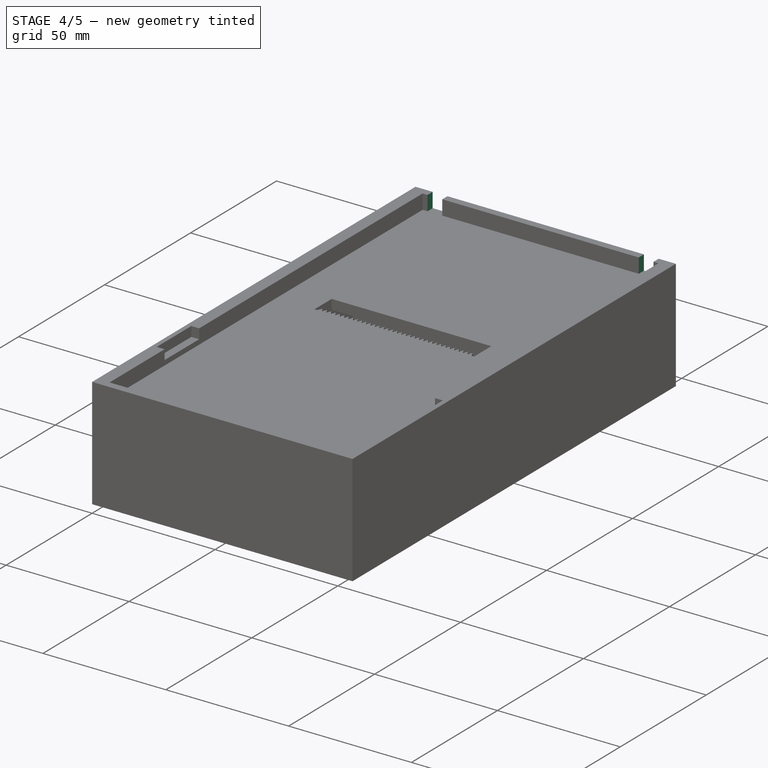
[diagram: stage 4 of 5 — iso view after this stage's code; geometry added in this stage tinted green]
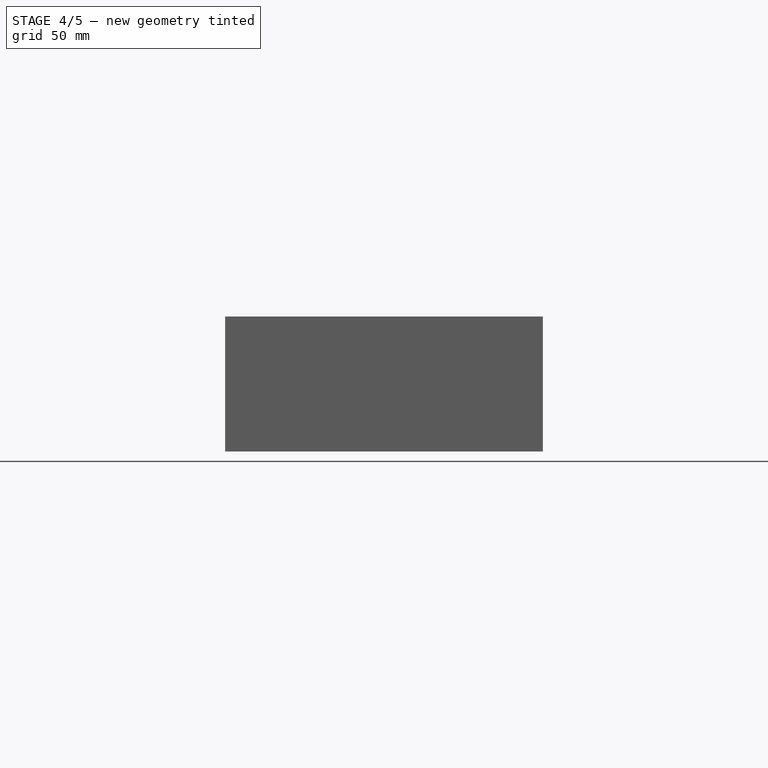
[diagram: stage 4 of 5 — front view after this stage's code; geometry added in this stage tinted green]
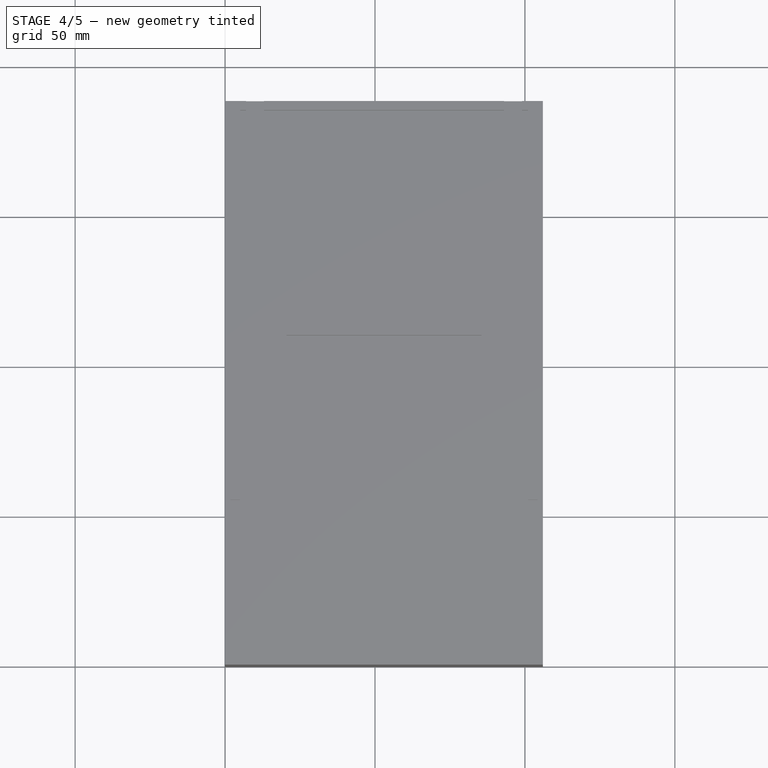
[diagram: stage 4 of 5 — top view after this stage's code; geometry added in this stage tinted green]
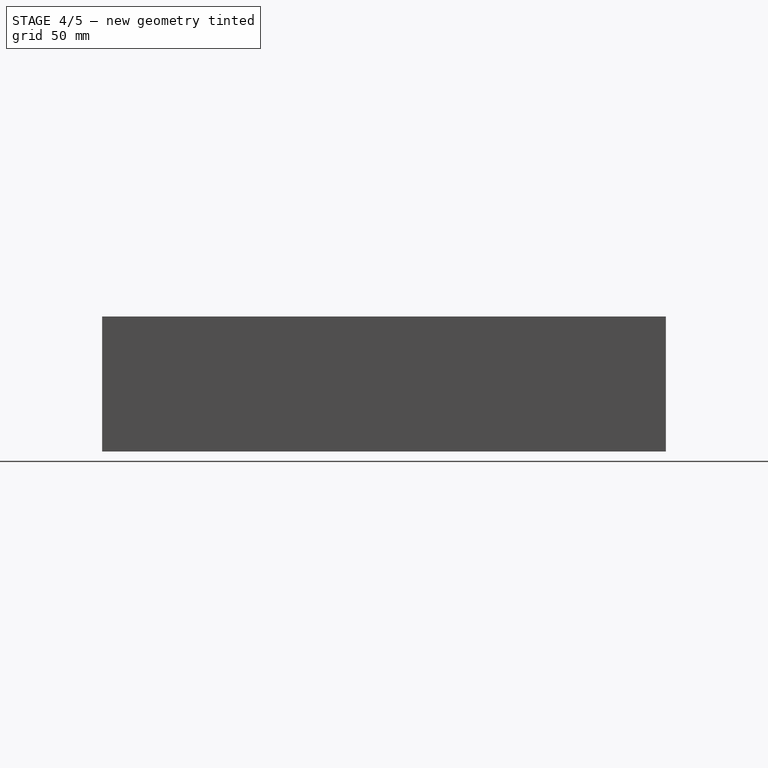
[diagram: stage 4 of 5 — right view after this stage's code; geometry added in this stage tinted green]
FEATURE [PartDesign::Point] DatumPoint
  AttacherType = Attacher::AttachEnginePoint
  AttachmentSupport = -> [Pocket003]
  MapMode = 37
  Placement = pos=(53,130,25) rot=(0,0,1;0rad)
FEATURE [PartDesign::Plane] DatumPlane
  AttachmentSupport = -> [YZ_Plane,DatumPoint]
  Length = 236.533
  MapMode = 53
  Placement = pos=(53,-5.9e-15,5.9e-15) rot=(0.57735,-0.57735,-0.57735;2.0944rad)
  ResizeMode = 0
  Width = 88.533
FEATURE [Sketcher::SketchObject] Sketch012
  ArcFitTolerance = 1e-06
  AttachmentSupport = -> [DatumPlane]
  ExternalGeometry = -> [Pocket003]
  FullyConstrained = true
  MakeInternals = false
  MapMode = 5
  Placement = pos=(53,-5.9e-15,5.9e-15) rot=(0.57735,-0.57735,-0.57735;2.0944rad)
  sketch-geometry (4):
    g0: ArcOfCircle CenterX=-159.904 CenterY=28.0958 CenterZ=0 NormalX=0 NormalY=0 NormalZ=1 AngleXU=0 Radius=25.0958 StartAngle=3.14159 EndAngle=6.15951
    g1: LineSegment StartX=-185 StartY=28.0958 StartZ=0 EndX=-185 EndY=-1.42e-14 EndZ=0
    g2: LineSegment StartX=-185 StartY=-1.42e-14 StartZ=0 EndX=-135 EndY=-6.8e-15 EndZ=0
    g3: LineSegment StartX=-135 StartY=-6.8e-15 StartZ=0 EndX=-135 EndY=25 EndZ=0
  constraints (9):
    c: Tangent(g1,g0) = -1.5708
    c: Coincident(g2,g1)
    c: Coincident(g3,g2)
    c: Coincident(g3,g0)
    c: Coincident(g2,g-3)
    c: Coincident(g-3,g0)
    c: Coincident(g1,g-4)
    c: Vertical(g1)
    c: Distance(g0,g2) = 3
FEATURE [PartDesign::Pad] Pad008
  BaseFeature = -> Pocket003
  Direction = (-1,0,0)
  Length = 70
  Length2 = 10
  Midplane = true
  Profile = -> Sketch012
  ReferenceAxis = -> Sketch012 [N_Axis]
  Refine = true
  Suppressed = false
  Type = 0
FEATURE [Sketcher::SketchObject] Sketch013
  ArcFitTolerance = 1e-06
  AttachmentSupport = -> [Pad008]
  ExternalGeometry = -> [Pad008]
  FullyConstrained = true
  MakeInternals = false
  MapMode = 5
  Placement = pos=(15,0,0) rot=(0.57735,-0.57735,-0.57735;2.0944rad)
  sketch-geometry (7):
    g0: LineSegment StartX=-135 StartY=-9e-16 StartZ=0 EndX=-135 EndY=25 EndZ=0
    g1: LineSegment StartX=-135 StartY=28.0958 StartZ=0 EndX=-185 EndY=28.0958 EndZ=0
    g2: LineSegment StartX=-185 StartY=28.0958 StartZ=0 EndX=-185 EndY=0 EndZ=0
    g3: LineSegment StartX=-185 StartY=-9e-16 StartZ=0 EndX=-135 EndY=-9e-16 EndZ=0
    g4: LineSegment StartX=-130 StartY=25 StartZ=0 EndX=-135 EndY=28.0958 EndZ=0
    g5: LineSegment StartX=-130 StartY=25 StartZ=0 EndX=-135 EndY=25 EndZ=0
    g6: LineSegment [constr] StartX=-135 StartY=28.0958 StartZ=0 EndX=-135 EndY=25 EndZ=0
  constraints (17):
    c: Coincident(g1,g2)
    c: Coincident(g2,g3)
    c: Coincident(g3,g0)
    c: Vertical(g2)
    c: Horizontal(g1)
    c: Horizontal(g3)
    c: Coincident(g1,g-3)
    c: Coincident(g4,g-4)
    c: Coincident(g4,g1)
    c: PointOnObject(g5,g4)
    c: Coincident(g5,g-4)
    c: Horizontal(g5)
    c: Coincident(g6,g1)
    c: Coincident(g6,g0)
    c: Vertical(g6)
    c: Coincident(g5,g0)
    c: Coincident(g0,g-5)
FEATURE [PartDesign::Pad] Pad009
  BaseFeature = -> Pad008
  Direction = (-1,0,0)
  Length = 3
  Length2 = 10
  Profile = -> Sketch013
  ReferenceAxis = -> Sketch013 [N_Axis]
  Refine = true
  Reversed = true
  Suppressed = false
  Type = 0
FEATURE [PartDesign::Plane] DatumPlane001
  AttachmentSupport = -> [YZ_Plane,DatumPoint]
  Length = 236.533
  MapMode = 53
  Placement = pos=(53,-5.9e-15,5.9e-15) rot=(0.57735,-0.57735,-0.57735;2.0944rad)
  ResizeMode = 0
  Width = 88.533
FEATURE [PartDesign::Mirrored] Mirrored
  BaseFeature = -> Pad009
  MirrorPlane = -> DatumPlane
  Originals = -> [Pad009]
  Refine = true
  Suppressed = false
  TransformMode = 0
FEATURE [Sketcher::SketchObject] Sketch014
  ArcFitTolerance = 1e-06
  AttachmentSupport = -> [Mirrored]
  ExternalGeometry = -> [Mirrored]
  FullyConstrained = true
  MakeInternals = false
  MapMode = 5
  Placement = pos=(0,188,0) rot=(0,0.707107,0.707107;3.14159rad)
  sketch-geometry (7):
    g0: ArcOfCircle CenterX=-96 CenterY=10 CenterZ=0 NormalX=0 NormalY=0 NormalZ=1 AngleXU=0 Radius=3 StartAngle=3.14159 EndAngle=6.28319
    g1: LineSegment StartX=-99 StartY=10 StartZ=0 EndX=-99 EndY=40 EndZ=0
    g2: LineSegment StartX=-93 StartY=10 StartZ=0 EndX=-93 EndY=40 EndZ=0
    g3: LineSegment [constr] StartX=-93 StartY=10 StartZ=0 EndX=-91 EndY=-1.24e-14 EndZ=0
    g4: LineSegment [constr] StartX=-99 StartY=10 StartZ=0 EndX=-101 EndY=-1.24e-14 EndZ=0
    g5: LineSegment [constr] StartX=-99 StartY=10 StartZ=0 EndX=-93 EndY=10 EndZ=0
    g6: LineSegment StartX=-99 StartY=40 StartZ=0 EndX=-93 EndY=40 EndZ=0
  constraints (19):
    c: Coincident(g1,g0)
    c: PointOnObject(g1,g-4)
    c: Vertical(g1)
    c: Coincident(g2,g0)
    c: PointOnObject(g2,g-4)
    c: Vertical(g2)
    c: Coincident(g3,g0)
    c: Coincident(g3,g-3)
    c: Coincident(g4,g0)
    c: Coincident(g4,g-3)
    c: Equal(g4,g3)
    c: Coincident(g5,g0)
    c: Coincident(g5,g0)
    c: Horizontal(g5)
    c: PointOnObject(g0,g5)
    c: Radius(g0) = 3
    c: DistanceY(g4,g0) = 10
    c: Coincident(g6,g1)
    c: Coincident(g6,g2)
FEATURE [PartDesign::Pocket] Pocket004
  BaseFeature = -> Mirrored
  Direction = (0,-1,2e-16)
  Length = 5
  Length2 = 5
  Profile = -> Sketch014
  ReferenceAxis = -> Sketch014 [N_Axis]
  Refine = true
  Suppressed = false
  Type = 0
FEATURE [PartDesign::Mirrored] Mirrored001
  BaseFeature = -> Pocket004
  MirrorPlane = -> DatumPlane001
  Originals = -> [Pocket004]
  Refine = true
  Suppressed = false
  TransformMode = 0
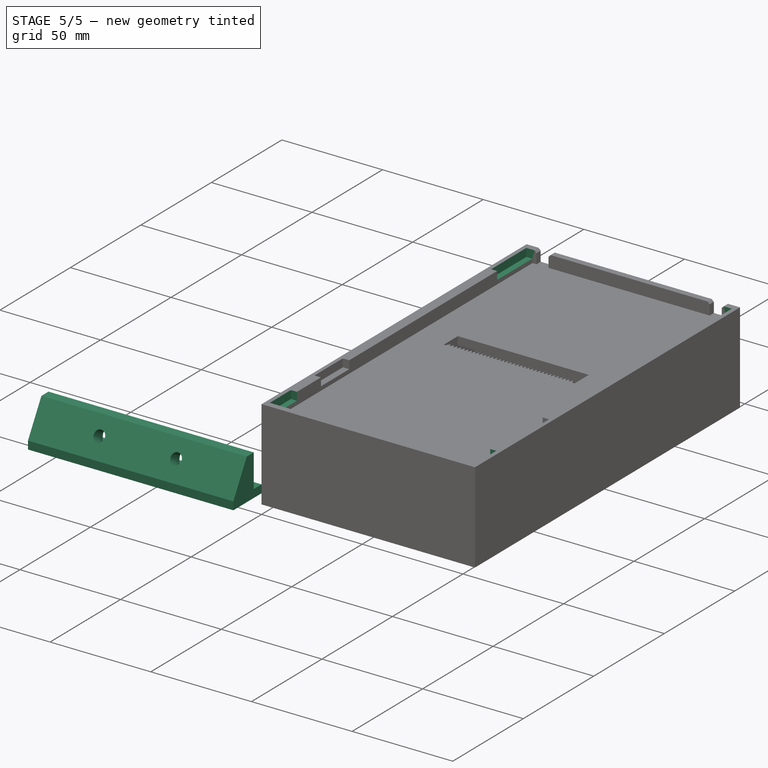
[diagram: stage 5 of 5 — iso view after this stage's code; geometry added in this stage tinted green]
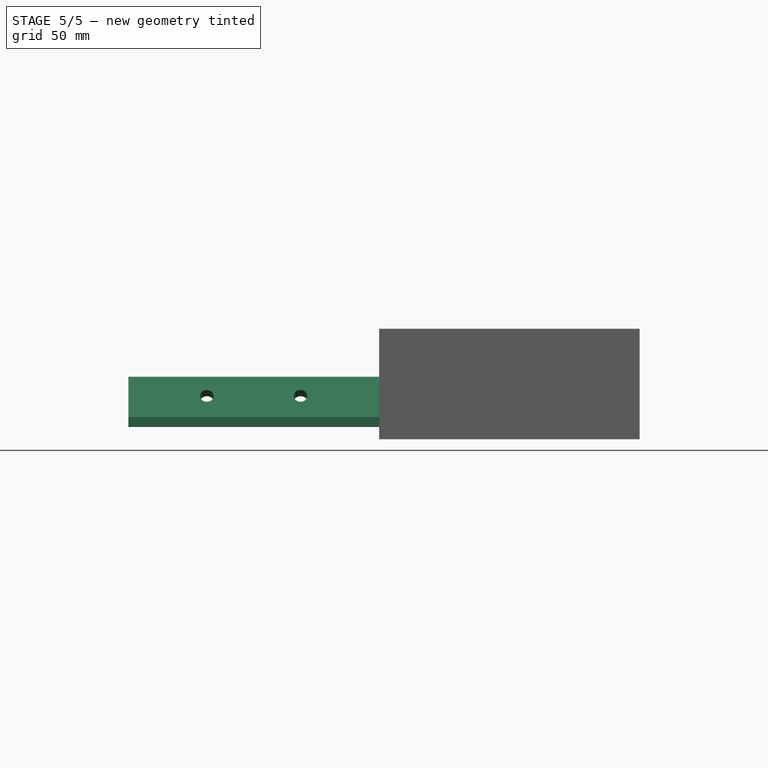
[diagram: stage 5 of 5 — front view after this stage's code; geometry added in this stage tinted green]
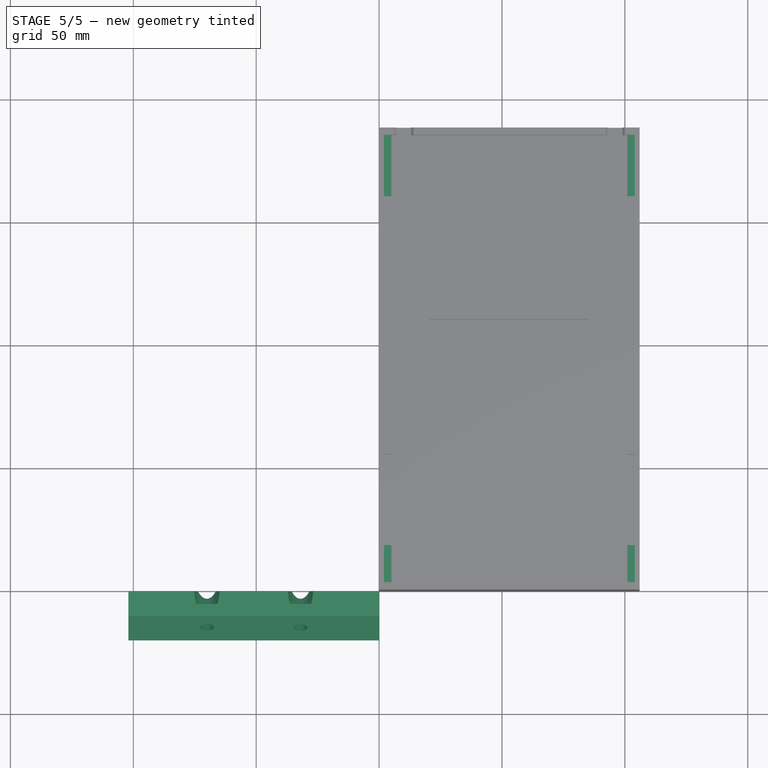
[diagram: stage 5 of 5 — top view after this stage's code; geometry added in this stage tinted green]
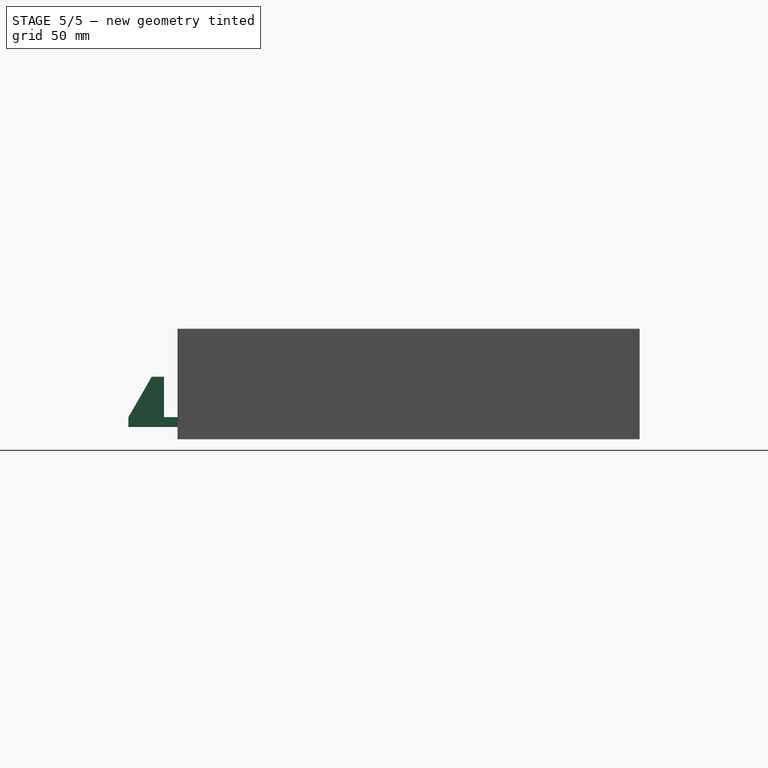
[diagram: stage 5 of 5 — right view after this stage's code; geometry added in this stage tinted green]
FEATURE [Sketcher::SketchObject] Sketch004
  ArcFitTolerance = 1e-06
  AttachmentSupport = -> [YZ_Plane002]
  FullyConstrained = true
  MakeInternals = false
  MapMode = 5
  Placement = pos=(0,0,0) rot=(0.57735,0.57735,0.57735;2.0944rad)
  sketch-geometry (8):
    g0: LineSegment StartX=-5.5 StartY=4 StartZ=0 EndX=-5.5 EndY=20.4545 EndZ=0
    g1: LineSegment [constr] StartX=-5.5 StartY=4 StartZ=0 EndX=-20 EndY=4 EndZ=0
    g2: LineSegment StartX=-20 StartY=4 StartZ=0 EndX=-10.5 EndY=20.4545 EndZ=0
    g3: LineSegment StartX=-10.5 StartY=20.4545 StartZ=0 EndX=-5.5 EndY=20.4545 EndZ=0
    g4: LineSegment StartX=-5.5 StartY=4 StartZ=0 EndX=0 EndY=4 EndZ=0
    g5: LineSegment StartX=0 StartY=4 StartZ=0 EndX=0 EndY=0 EndZ=0
    g6: LineSegment StartX=0 StartY=0 StartZ=0 EndX=-20 EndY=0 EndZ=0
    g7: LineSegment StartX=-20 StartY=0 StartZ=0 EndX=-20 EndY=4 EndZ=0
  constraints (23):
    c: Coincident(g1,g0)
    c: Horizontal(g1)
    c: Coincident(g2,g1)
    c: Coincident(g3,g2)
    c: Coincident(g3,g0)
    c: Horizontal(g3)
    c: Distance(g2,g2) = 19
    c: DistanceX(g3,g3) = 5
    c: Vertical(g0)
    c: Coincident(g4,g0)
    c: Horizontal(g4)
    c: Coincident(g5,g4)
    c: Coincident(g6,g5)
    c: PointOnObject(g6,g-1)
    c: Coincident(g7,g6)
    c: Vertical(g7)
    c: Vertical(g5)
    c: DistanceY(g5,g5) = 4
    c: DistanceX(g4,g4) = 5.5
    c: Angle(g1,g2) = 1.0472
    c: Coincident(g5,g-1)
    c: Coincident(g1,g7)
    c: DistanceX(g6,g6) = 20
FEATURE [PartDesign::Pad] Pad004
  Direction = (1,0,0)
  Length = 102
  Length2 = 10
  Placement = pos=(0,0,0) rot=(1,1,1;2.0944rad)
  Profile = -> Sketch004
  ReferenceAxis = -> Sketch004 [N_Axis]
  Refine = true
  Reversed = true
  Suppressed = false
  Type = 0
FEATURE [Sketcher::SketchObject] Sketch006
  ArcFitTolerance = 1e-06
  AttachmentSupport = -> [Pad004]
  ExternalGeometry = -> [Pad004]
  FullyConstrained = true
  MakeInternals = false
  MapMode = 5
  Placement = pos=(-3.7e-15,-16.7321,9.66025) rot=(0.447214,0.447214,-0.774597;1.82348rad)
  sketch-geometry (5):
    g0: Circle CenterX=-3.4641 CenterY=-31.95 CenterZ=0 NormalX=0 NormalY=0 NormalZ=1 AngleXU=0 Radius=2.75
    g1: Circle CenterX=-3.4641 CenterY=-70.05 CenterZ=0 NormalX=0 NormalY=0 NormalZ=1 AngleXU=0 Radius=2.75
    g2: LineSegment [constr] StartX=-3.4641 StartY=-70.05 StartZ=0 EndX=-3.4641 EndY=-31.95 EndZ=0
    g3: LineSegment [constr] StartX=-12.4641 StartY=-4.2e-15 StartZ=0 EndX=-3.4641 EndY=-31.95 EndZ=0
    g4: LineSegment [constr] StartX=-3.4641 StartY=-70.05 StartZ=0 EndX=-12.4641 EndY=-102 EndZ=0
  constraints (12):
    c: Coincident(g2,g1)
    c: Vertical(g2)
    c: DistanceY(g2,g2) = 38.1
    c: Coincident(g2,g0)
    c: Equal(g0,g1)
    c: Diameter(g1) = 5.5
    c: Coincident(g4,g1)
    c: Coincident(g4,g-3)
    c: Coincident(g0,g3)
    c: Equal(g3,g4)
    c: DistanceX(g4,g4) = 9
    c: Coincident(g3,g-3)
FEATURE [PartDesign::Pocket] Pocket001
  BaseFeature = -> Pad004
  Direction = (0,0.866025,-0.5)
  Length = 5
  Length2 = 5
  Placement = pos=(0,0,0) rot=(1,1,1;2.0944rad)
  Profile = -> Sketch006
  ReferenceAxis = -> Sketch006 [N_Axis]
  Refine = true
  Suppressed = false
  Type = 1
FEATURE [Sketcher::SketchObject] Sketch007
  ArcFitTolerance = 1e-06
  AttachmentOffset = pos=(0,0,-5) rot=(0,0,1;0rad)
  AttachmentSupport = -> [Pocket001]
  ExternalGeometry = -> [Pocket001]
  FullyConstrained = true
  MakeInternals = false
  MapMode = 5
  Placement = pos=(-3.9e-15,-12.4019,7.16025) rot=(0.447214,0.447214,-0.774597;1.82348rad)
  sketch-geometry (2):
    g0: Circle CenterX=-3.4641 CenterY=-31.95 CenterZ=0 NormalX=0 NormalY=0 NormalZ=1 AngleXU=0 Radius=5
    g1: Circle CenterX=-3.4641 CenterY=-70.05 CenterZ=0 NormalX=0 NormalY=0 NormalZ=1 AngleXU=0 Radius=5
  constraints (4):
    c: Coincident(g0,g-3)
    c: Coincident(g1,g-4)
    c: Diameter(g1) = 10
    c: Equal(g1,g0)
FEATURE [PartDesign::Pocket] Pocket002
  BaseFeature = -> Pocket001
  Direction = (0,0.866025,-0.5)
  Length = 5
  Length2 = 5
  Placement = pos=(0,0,0) rot=(1,1,1;2.0944rad)
  Profile = -> Sketch007
  ReferenceAxis = -> Sketch007 [N_Axis]
  Refine = true
  Suppressed = false
  Type = 1
FEATURE [PartDesign::Chamfer] Chamfer
  Angle = 45
  Base = -> Mirrored001 [Edge76,Edge26,Edge77,Edge12]
  BaseFeature = -> Mirrored001
  ChamferType = 0
  FlipDirection = false
  Refine = true
  Size = 1
  Size2 = 1
  SupportTransform = false
  Suppressed = false
  UseAllEdges = false
FEATURE [Sketcher::SketchObject] Sketch015
  ArcFitTolerance = 1e-06
  AttachmentSupport = -> [Chamfer]
  ExternalGeometry = -> [Chamfer]
  FullyConstrained = true
  MakeInternals = false
  MapMode = 5
  Placement = pos=(0,0,40) rot=(0,0,1;0rad)
  sketch-geometry (16):
    g0: LineSegment StartX=5 StartY=3 StartZ=0 EndX=5 EndY=18 EndZ=0
    g1: LineSegment StartX=5 StartY=18 StartZ=0 EndX=2 EndY=18 EndZ=0
    g2: LineSegment StartX=2 StartY=18 StartZ=0 EndX=2 EndY=3 EndZ=0
    g3: LineSegment StartX=2 StartY=3 StartZ=0 EndX=5 EndY=3 EndZ=0
    g4: LineSegment StartX=101 StartY=3 StartZ=0 EndX=104 EndY=3 EndZ=0
    g5: LineSegment StartX=104 StartY=3 StartZ=0 EndX=104 EndY=18 EndZ=0
    g6: LineSegment StartX=104 StartY=18 StartZ=0 EndX=101 EndY=18 EndZ=0
    g7: LineSegment StartX=101 StartY=18 StartZ=0 EndX=101 EndY=3 EndZ=0
    g8: LineSegment StartX=5 StartY=185 StartZ=0 EndX=2 EndY=185 EndZ=0
    g9: LineSegment StartX=2 StartY=185 StartZ=0 EndX=2 EndY=160 EndZ=0
    g10: LineSegment StartX=2 StartY=160 StartZ=0 EndX=5 EndY=160 EndZ=0
    g11: LineSegment StartX=5 StartY=160 StartZ=0 EndX=5 EndY=185 EndZ=0
    g12: LineSegment StartX=101 StartY=185 StartZ=0 EndX=101 EndY=160 EndZ=0
    g13: LineSegment StartX=101 StartY=160 StartZ=0 EndX=104 EndY=160 EndZ=0
    g14: LineSegment StartX=104 StartY=160 StartZ=0 EndX=104 EndY=185 EndZ=0
    g15: LineSegment StartX=104 StartY=185 StartZ=0 EndX=101 EndY=185 EndZ=0
  constraints (44):
    c: Coincident(g0,g1)
    c: Coincident(g1,g2)
    c: Coincident(g2,g3)
    c: Coincident(g3,g0)
    c: Vertical(g0)
    c: Vertical(g2)
    c: Horizontal(g1)
    c: Horizontal(g3)
    c: Coincident(g0,g-4)
    c: Coincident(g4,g5)
    c: Coincident(g5,g6)
    c: Coincident(g6,g7)
    c: Coincident(g7,g4)
    c: Horizontal(g4)
    c: Horizontal(g6)
    c: Vertical(g5)
    c: Vertical(g7)
    c: Coincident(g4,g-3)
    c: Equal(g6,g1)
    c: Equal(g7,g0)
    c: DistanceY(g0,g0) = 15
    c: DistanceX(g1,g1) = 3
    c: Coincident(g8,g9)
    c: Coincident(g9,g10)
    c: Coincident(g10,g11)
    c: Coincident(g11,g8)
    c: Horizontal(g8)
    c: Horizontal(g10)
    c: Vertical(g9)
    c: Vertical(g11)
    c: Coincident(g8,g-6)
    c: Coincident(g12,g13)
    c: Coincident(g13,g14)
    c: Coincident(g14,g15)
    c: Coincident(g15,g12)
    c: Vertical(g12)
    c: Vertical(g14)
    c: Horizontal(g13)
    c: Horizontal(g15)
    c: Coincident(g12,g-5)
    c: Equal(g12,g11)
    c: Equal(g8,g15)
    c: DistanceX(g15,g15) = 3
    c: DistanceY(g12,g12) = 25
FEATURE [PartDesign::Pocket] Pocket005
  BaseFeature = -> Chamfer
  Direction = (0,0,-1)
  Length = 4
  Length2 = 5
  Profile = -> Sketch015
  ReferenceAxis = -> Sketch015 [N_Axis]
  Refine = true
  Suppressed = false
  Type = 0
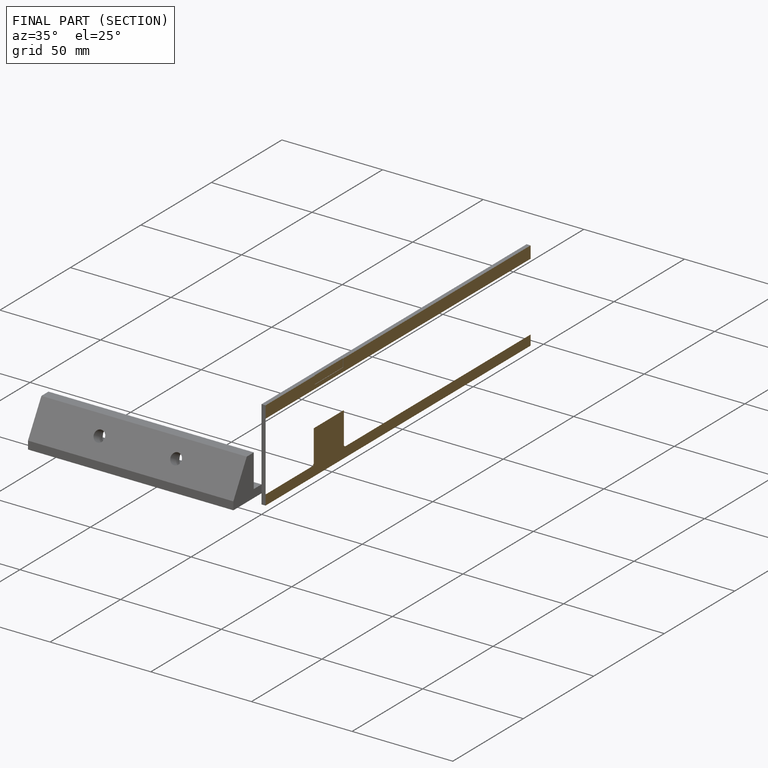
[diagram: finished part — half-section view (interior)]
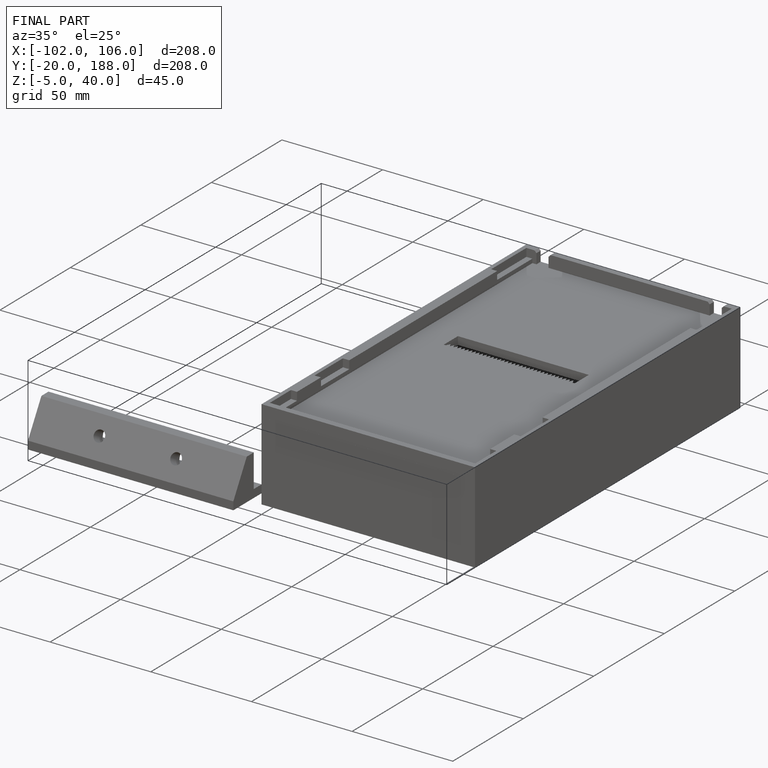
[diagram: finished part — iso view with bounding-box wireframe]
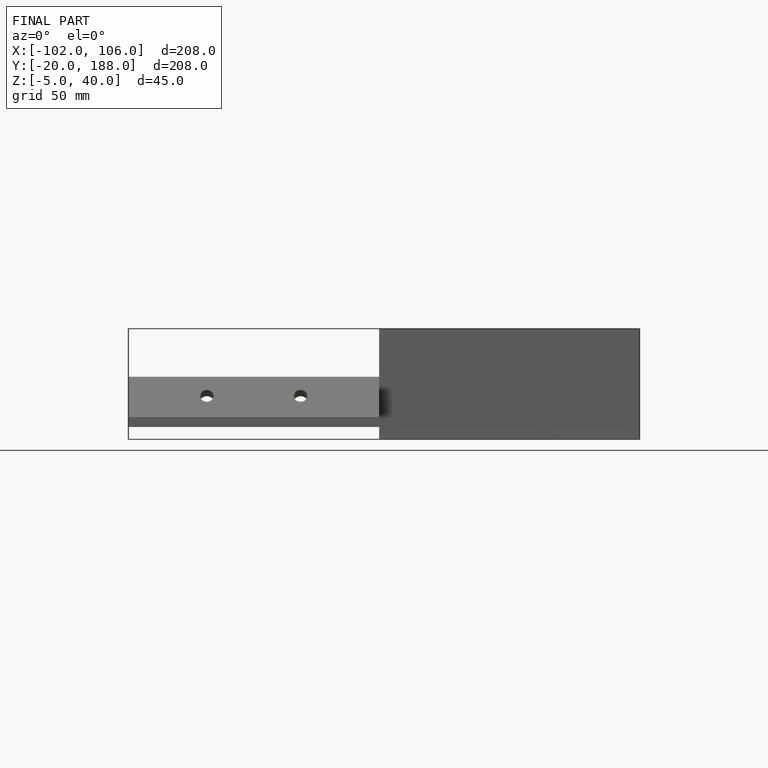
[diagram: finished part — front view with bounding-box wireframe]
